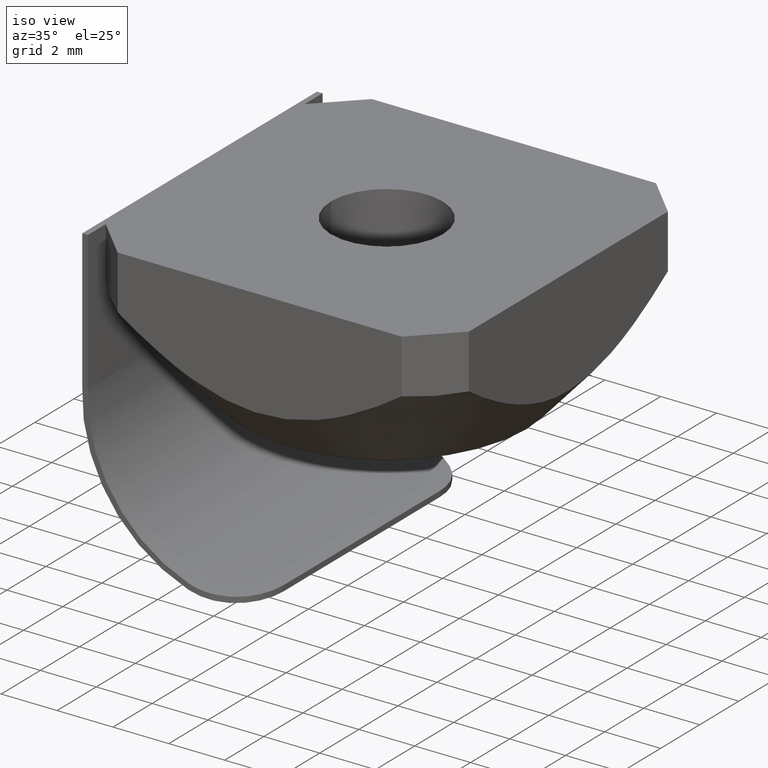
[diagram: clean part render]
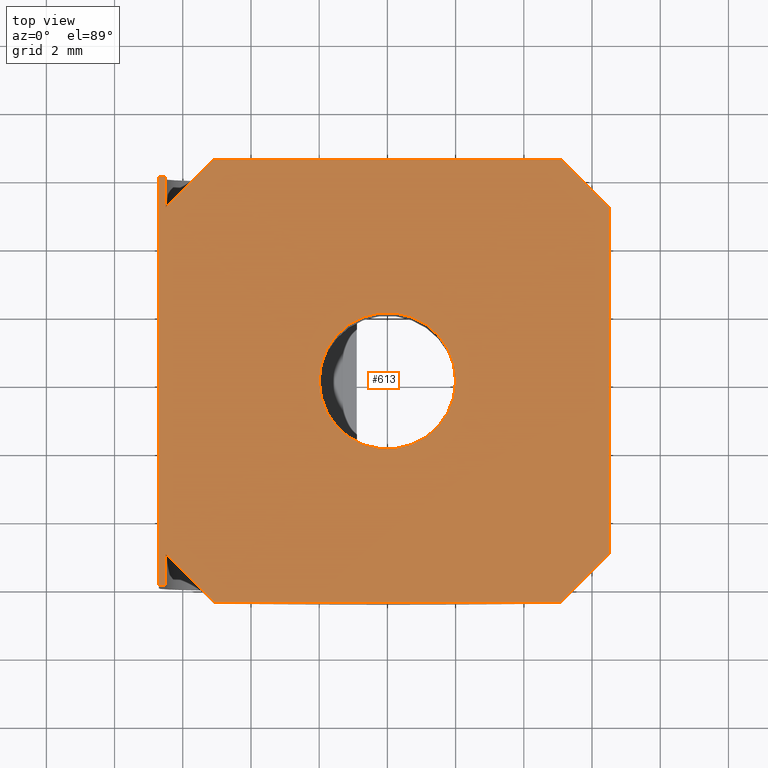
[diagram: tour spotlight — one face highlighted and labeled with its STEP entity id]
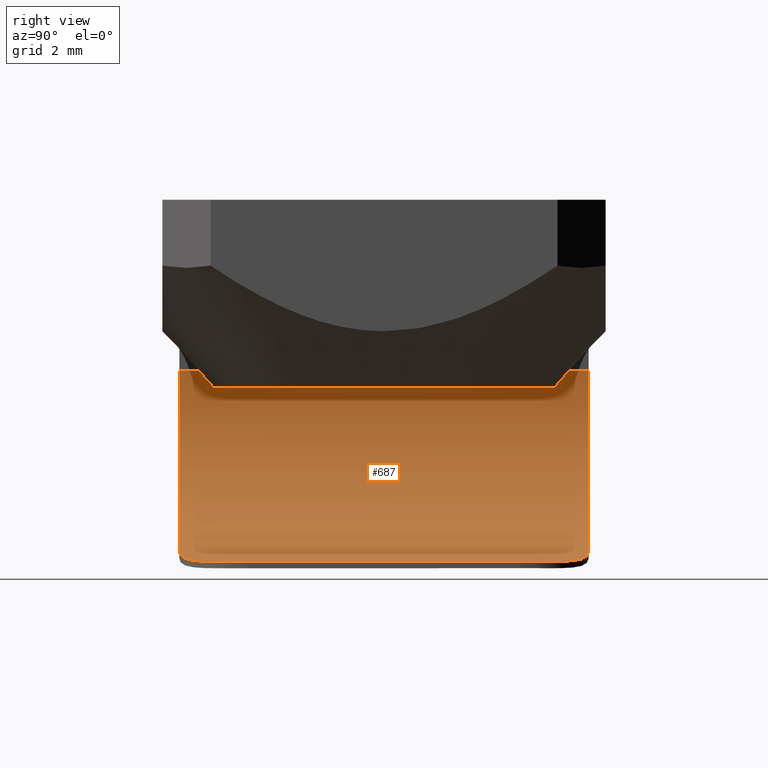
[diagram: tour spotlight — one face highlighted and labeled with its STEP entity id]
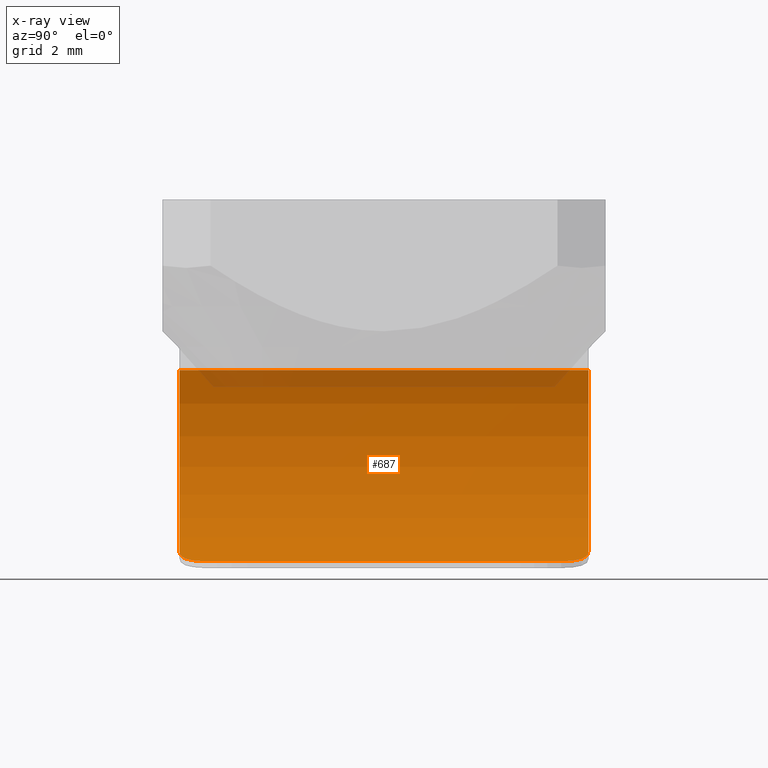
[diagram: x-ray of the same camera — body ghosted, this tour face saturated]
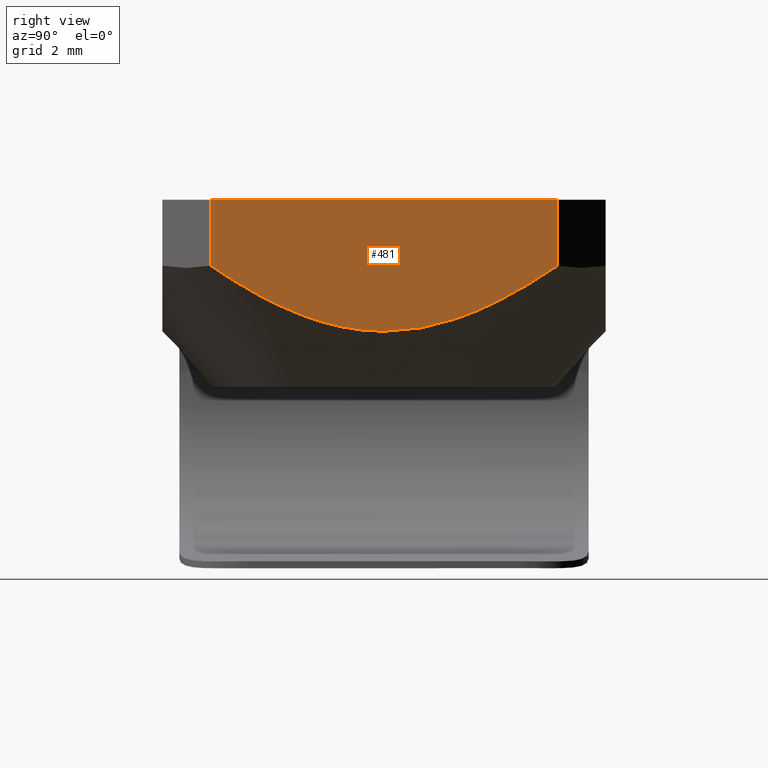
[diagram: tour spotlight — one face highlighted and labeled with its STEP entity id]
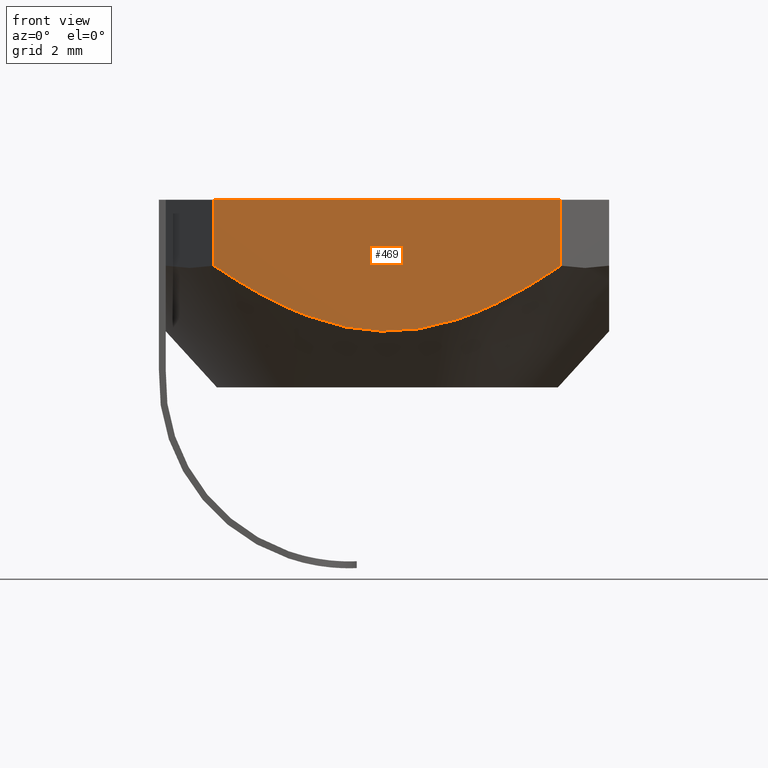
[diagram: tour spotlight — one face highlighted and labeled with its STEP entity id]
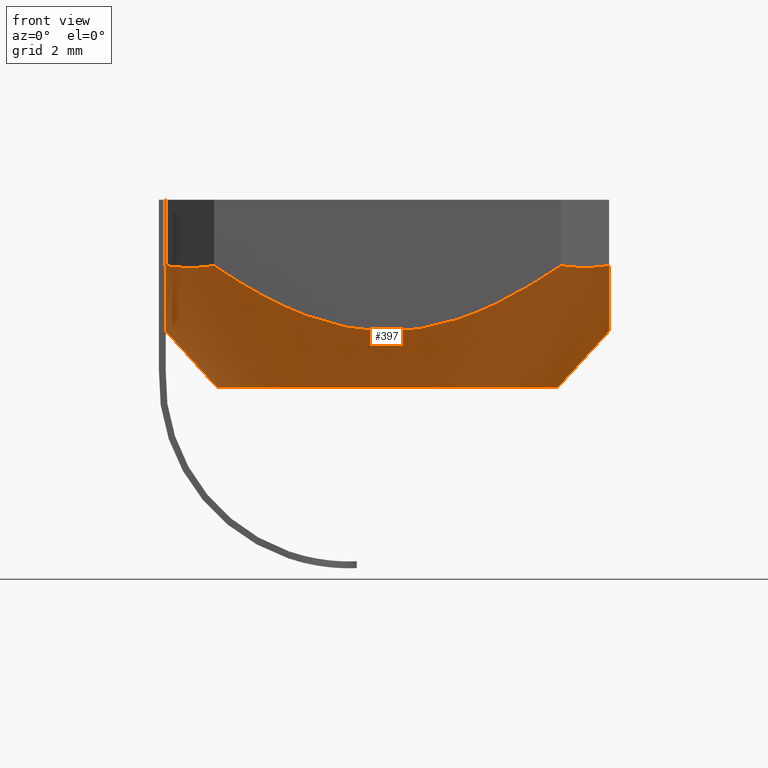
[diagram: tour spotlight — one face highlighted and labeled with its STEP entity id]
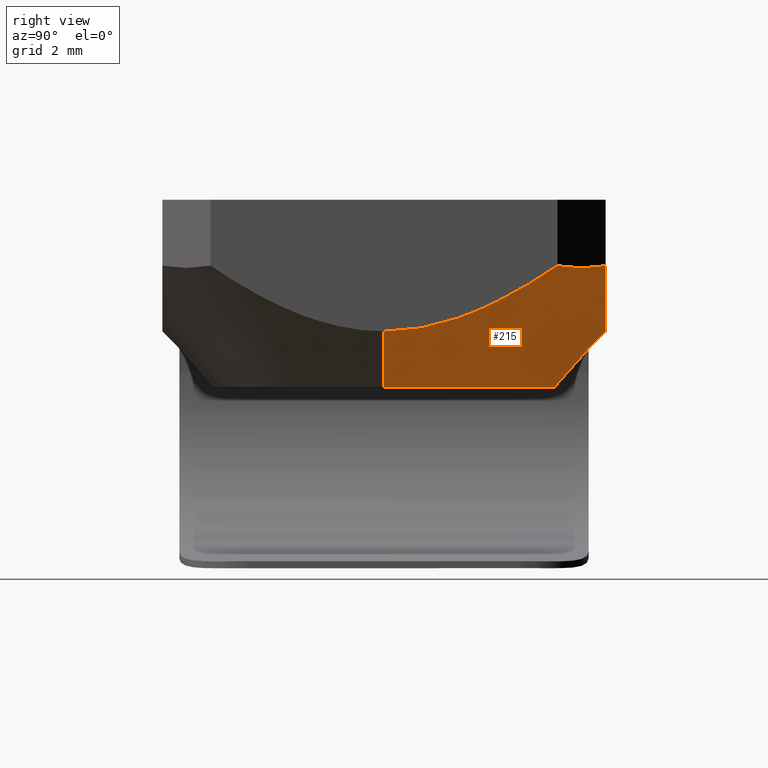
[diagram: tour spotlight — one face highlighted and labeled with its STEP entity id]
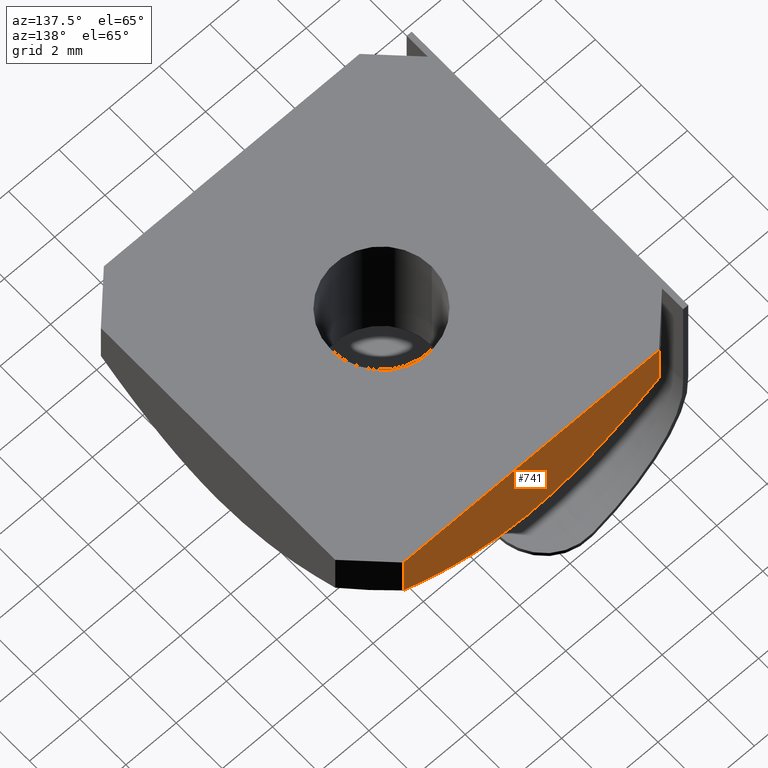
[diagram: tour spotlight — one face highlighted and labeled with its STEP entity id]
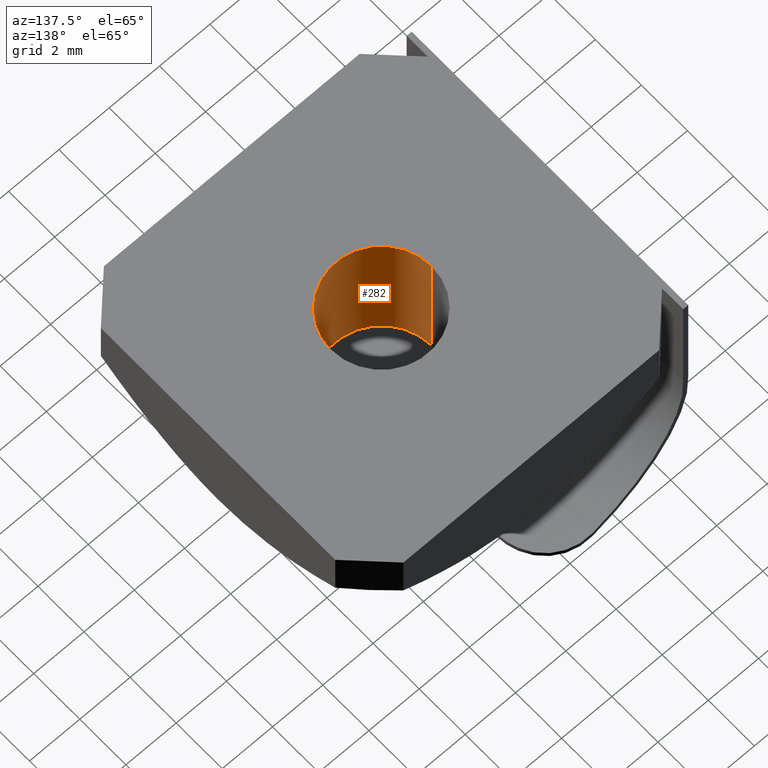
[diagram: tour spotlight — one face highlighted and labeled with its STEP entity id]
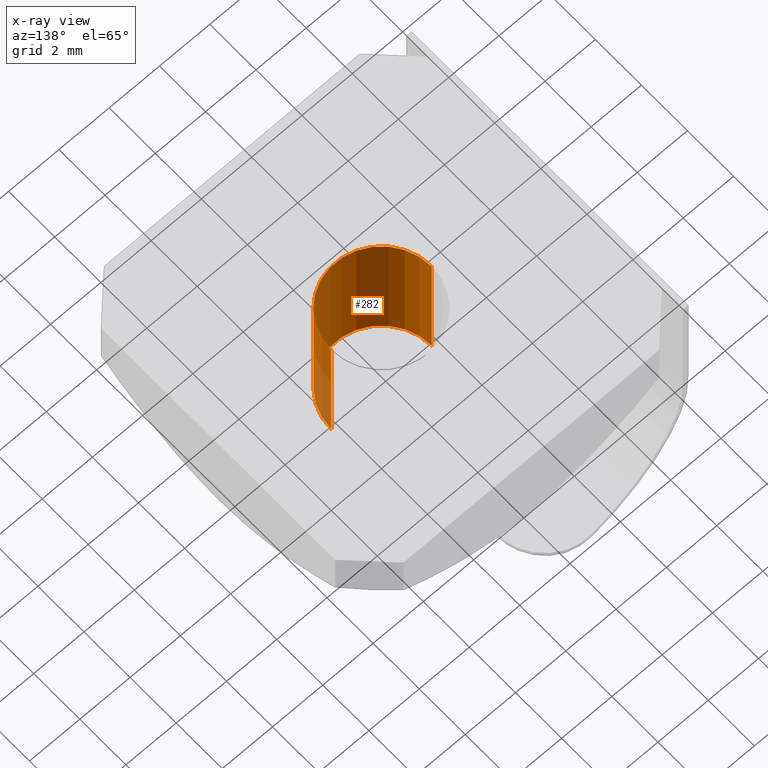
[diagram: x-ray of the same camera — body ghosted, this tour face saturated]
A machine part: a face-by-face anatomy tour. The part has 22 B-rep faces; the first image is the clean iso view, then the 8 largest visible faces are spotlighted one at a time (largest first), each with its STEP entity span.

Face 1 — top view, entity #613. In plain terms, the highlighted planar face has unit normal (0, 0, 1).
Definition (entity closure, byte-faithful):
#6 = AXIS2_PLACEMENT_3D ( 'NONE', #99, #86, #227 ) ;
#13 = ORIENTED_EDGE ( 'NONE', *, *, #447, .F. ) ;
#20 = VECTOR ( 'NONE', #470, 1000.000000000000114 ) ;
#23 = VERTEX_POINT ( 'NONE', #446 ) ;
#25 = EDGE_CURVE ( 'NONE', #303, #244, #812, .T. ) ;
#36 = CARTESIAN_POINT ( 'NONE',  ( -6.499999999999999112, 5.085786437626910406, 0.0000000000000000000 ) ) ;
#41 = FACE_BOUND ( 'NONE', #597, .T. ) ;
#52 = VECTOR ( 'NONE', #109, 1000.000000000000000 ) ;
#65 = DIRECTION ( 'NONE',  ( 1.000000000000000000, 0.0000000000000000000, -0.0000000000000000000 ) ) ;
#77 = DIRECTION ( 'NONE',  ( -0.0000000000000000000, -1.000000000000000000, -0.0000000000000000000 ) ) ;
#86 = DIRECTION ( 'NONE',  ( 0.0000000000000000000, 0.0000000000000000000, -1.000000000000000000 ) ) ;
#95 = ORIENTED_EDGE ( 'NONE', *, *, #852, .T. ) ;
#99 = CARTESIAN_POINT ( 'NONE',  ( 0.0000000000000000000, 0.0000000000000000000, 0.0000000000000000000 ) ) ;
#102 = VECTOR ( 'NONE', #248, 1000.000000000000000 ) ;
#109 = DIRECTION ( 'NONE',  ( -0.0000000000000000000, -1.000000000000000000, -0.0000000000000000000 ) ) ;
#114 = EDGE_LOOP ( 'NONE', ( #513, #193, #546, #744, #860, #567, #659, #532, #232, #13, #608, #95 ) ) ;
#149 = LINE ( 'NONE', #759, #657 ) ;
#163 = VECTOR ( 'NONE', #636, 1000.000000000000000 ) ;
#171 = AXIS2_PLACEMENT_3D ( 'NONE', #796, #450, #256 ) ;
#173 = EDGE_CURVE ( 'NONE', #375, #23, #331, .T. ) ;
#174 = ORIENTED_EDGE ( 'NONE', *, *, #618, .T. ) ;
#175 = CARTESIAN_POINT ( 'NONE',  ( -6.500000000000000888, 0.0000000000000000000, 0.0000000000000000000 ) ) ;
#182 = EDGE_CURVE ( 'NONE', #683, #827, #868, .T. ) ;
#188 = DIRECTION ( 'NONE',  ( 0.7071067811865473507, 0.7071067811865477948, 0.0000000000000000000 ) ) ;
#190 = EDGE_CURVE ( 'NONE', #827, #453, #429, .T. ) ;
#193 = ORIENTED_EDGE ( 'NONE', *, *, #416, .T. ) ;
#220 = LINE ( 'NONE', #175, #52 ) ;
#224 = CARTESIAN_POINT ( 'NONE',  ( -2.000000000000000000, 0.0000000000000000000, 0.0000000000000000000 ) ) ;
#227 = DIRECTION ( 'NONE',  ( -1.000000000000000000, 0.0000000000000000000, 0.0000000000000000000 ) ) ;
#231 = EDGE_CURVE ( 'NONE', #683, #534, #781, .T. ) ;
#232 = ORIENTED_EDGE ( 'NONE', *, *, #867, .T. ) ;
#244 = VERTEX_POINT ( 'NONE', #494 ) ;
#248 = DIRECTION ( 'NONE',  ( 0.7071067811865473507, -0.7071067811865477948, 0.0000000000000000000 ) ) ;
#253 = VECTOR ( 'NONE', #77, 1000.000000000000000 ) ;
#256 = DIRECTION ( 'NONE',  ( 1.000000000000000000, 0.0000000000000000000, -0.0000000000000000000 ) ) ;
#272 = EDGE_CURVE ( 'NONE', #344, #366, #858, .T. ) ;
#279 = DIRECTION ( 'NONE',  ( -1.000000000000000000, -0.0000000000000000000, 0.0000000000000000000 ) ) ;
#298 = LINE ( 'NONE', #485, #824 ) ;
#303 = VERTEX_POINT ( 'NONE', #357 ) ;
#318 = PLANE ( 'NONE',  #171 ) ;
#331 = LINE ( 'NONE', #833, #20 ) ;
#344 = VERTEX_POINT ( 'NONE', #224 ) ;
#347 = EDGE_CURVE ( 'NONE', #393, #453, #419, .T. ) ;
#349 = CARTESIAN_POINT ( 'NONE',  ( -6.700000000000000178, 6.591949000000000730E-16, 0.0000000000000000000 ) ) ;
#357 = CARTESIAN_POINT ( 'NONE',  ( -6.500000000000001776, -5.085786437626905965, 0.0000000000000000000 ) ) ;
#362 = CARTESIAN_POINT ( 'NONE',  ( 2.000000000000000000, 2.449293598294706414E-16, 0.0000000000000000000 ) ) ;
#366 = VERTEX_POINT ( 'NONE', #362 ) ;
#367 = CARTESIAN_POINT ( 'NONE',  ( 6.500000000000000888, 5.085786437626908629, 0.0000000000000000000 ) ) ;
#375 = VERTEX_POINT ( 'NONE', #367 ) ;
#380 = VERTEX_POINT ( 'NONE', #505 ) ;
#391 = LINE ( 'NONE', #863, #712 ) ;
#393 = VERTEX_POINT ( 'NONE', #506 ) ;
#406 = DIRECTION ( 'NONE',  ( 1.000000000000000000, 0.0000000000000000000, -0.0000000000000000000 ) ) ;
#412 = CIRCLE ( 'NONE', #888, 2.000000000000000000 ) ;
#416 = EDGE_CURVE ( 'NONE', #713, #375, #489, .T. ) ;
#419 = LINE ( 'NONE', #565, #670 ) ;
#426 = CARTESIAN_POINT ( 'NONE',  ( 6.500000000000000888, 6.591949000000000730E-16, 0.0000000000000000000 ) ) ;
#429 = LINE ( 'NONE', #482, #253 ) ;
#446 = CARTESIAN_POINT ( 'NONE',  ( 5.085786437626906853, 6.500000000000003553, 0.0000000000000000000 ) ) ;
#447 = EDGE_CURVE ( 'NONE', #303, #380, #220, .T. ) ;
#450 = DIRECTION ( 'NONE',  ( 0.0000000000000000000, 0.0000000000000000000, 1.000000000000000000 ) ) ;
#453 = VERTEX_POINT ( 'NONE', #36 ) ;
#455 = CARTESIAN_POINT ( 'NONE',  ( -6.700000000000000178, -6.000000000000000888, 0.0000000000000000000 ) ) ;
#470 = DIRECTION ( 'NONE',  ( -0.7071067811865474617, 0.7071067811865474617, 0.0000000000000000000 ) ) ;
#482 = CARTESIAN_POINT ( 'NONE',  ( -6.500000000000000888, 0.0000000000000000000, 0.0000000000000000000 ) ) ;
#485 = CARTESIAN_POINT ( 'NONE',  ( 8.326673000000000714E-16, 6.500000000000003553, 0.0000000000000000000 ) ) ;
#489 = LINE ( 'NONE', #426, #631 ) ;
#494 = CARTESIAN_POINT ( 'NONE',  ( -5.085786437626905077, -6.500000000000002665, 0.0000000000000000000 ) ) ;
#505 = CARTESIAN_POINT ( 'NONE',  ( -6.500000000000001776, -6.000000000000000888, 0.0000000000000000000 ) ) ;
#506 = CARTESIAN_POINT ( 'NONE',  ( -5.085786437626904188, 6.500000000000005329, 0.0000000000000000000 ) ) ;
#513 = ORIENTED_EDGE ( 'NONE', *, *, #542, .T. ) ;
#529 = CARTESIAN_POINT ( 'NONE',  ( -6.700000000000000178, 6.000000000000000888, 0.0000000000000000000 ) ) ;
#532 = ORIENTED_EDGE ( 'NONE', *, *, #231, .T. ) ;
#534 = VERTEX_POINT ( 'NONE', #455 ) ;
#538 = CARTESIAN_POINT ( 'NONE',  ( 5.085786437626906853, -6.500000000000002665, 0.0000000000000000000 ) ) ;
#540 = CARTESIAN_POINT ( 'NONE',  ( 6.500000000000000888, -5.085786437626907741, 0.0000000000000000000 ) ) ;
#542 = EDGE_CURVE ( 'NONE', #763, #713, #391, .T. ) ;
#546 = ORIENTED_EDGE ( 'NONE', *, *, #173, .T. ) ;
#553 = CARTESIAN_POINT ( 'NONE',  ( -5.221683483938816650, 6.000000000000000888, 0.0000000000000000000 ) ) ;
#565 = CARTESIAN_POINT ( 'NONE',  ( -5.085786437626904188, 6.500000000000005329, 0.0000000000000000000 ) ) ;
#567 = ORIENTED_EDGE ( 'NONE', *, *, #190, .F. ) ;
#583 = CARTESIAN_POINT ( 'NONE',  ( 0.0000000000000000000, 0.0000000000000000000, 0.0000000000000000000 ) ) ;
#597 = EDGE_LOOP ( 'NONE', ( #660, #174 ) ) ;
#608 = ORIENTED_EDGE ( 'NONE', *, *, #25, .T. ) ;
#613 = ADVANCED_FACE ( 'NONE', ( #41, #757 ), #318, .T. ) ;
#618 = EDGE_CURVE ( 'NONE', #366, #344, #412, .T. ) ;
#631 = VECTOR ( 'NONE', #648, 1000.000000000000000 ) ;
#636 = DIRECTION ( 'NONE',  ( 0.0000000000000000000, -1.000000000000000000, -0.0000000000000000000 ) ) ;
#648 = DIRECTION ( 'NONE',  ( -0.0000000000000000000, 1.000000000000000000, 0.0000000000000000000 ) ) ;
#654 = DIRECTION ( 'NONE',  ( 0.0000000000000000000, 0.0000000000000000000, -1.000000000000000000 ) ) ;
#657 = VECTOR ( 'NONE', #749, 1000.000000000000000 ) ;
#658 = CARTESIAN_POINT ( 'NONE',  ( -6.500000000000000888, -5.085786437626906853, 0.0000000000000000000 ) ) ;
#659 = ORIENTED_EDGE ( 'NONE', *, *, #182, .F. ) ;
#660 = ORIENTED_EDGE ( 'NONE', *, *, #272, .T. ) ;
#670 = VECTOR ( 'NONE', #775, 1000.000000000000114 ) ;
#683 = VERTEX_POINT ( 'NONE', #529 ) ;
#712 = VECTOR ( 'NONE', #188, 1000.000000000000000 ) ;
#713 = VERTEX_POINT ( 'NONE', #540 ) ;
#744 = ORIENTED_EDGE ( 'NONE', *, *, #822, .T. ) ;
#749 = DIRECTION ( 'NONE',  ( 1.000000000000000000, 0.0000000000000000000, -0.0000000000000000000 ) ) ;
#757 = FACE_OUTER_BOUND ( 'NONE', #114, .T. ) ;
#759 = CARTESIAN_POINT ( 'NONE',  ( 8.326673000000000714E-16, -6.500000000000002665, 0.0000000000000000000 ) ) ;
#763 = VERTEX_POINT ( 'NONE', #538 ) ;
#775 = DIRECTION ( 'NONE',  ( -0.7071067811865474617, -0.7071067811865474617, 0.0000000000000000000 ) ) ;
#781 = LINE ( 'NONE', #349, #163 ) ;
#794 = DIRECTION ( 'NONE',  ( -1.000000000000000000, 0.0000000000000000000, 0.0000000000000000000 ) ) ;
#796 = CARTESIAN_POINT ( 'NONE',  ( 8.326673000000000714E-16, 6.591949000000000730E-16, 0.0000000000000000000 ) ) ;
#798 = VECTOR ( 'NONE', #406, 1000.000000000000000 ) ;
#812 = LINE ( 'NONE', #658, #102 ) ;
#820 = CARTESIAN_POINT ( 'NONE',  ( -5.221683483938816650, -6.000000000000000888, 0.0000000000000000000 ) ) ;
#822 = EDGE_CURVE ( 'NONE', #23, #393, #298, .T. ) ;
#824 = VECTOR ( 'NONE', #279, 1000.000000000000000 ) ;
#826 = VECTOR ( 'NONE', #65, 1000.000000000000000 ) ;
#827 = VERTEX_POINT ( 'NONE', #829 ) ;
#829 = CARTESIAN_POINT ( 'NONE',  ( -6.500000000000001776, 6.000000000000000888, 0.0000000000000000000 ) ) ;
#833 = CARTESIAN_POINT ( 'NONE',  ( 6.500000000000002665, 5.085786437626907741, 0.0000000000000000000 ) ) ;
#845 = LINE ( 'NONE', #820, #798 ) ;
#852 = EDGE_CURVE ( 'NONE', #244, #763, #149, .T. ) ;
#858 = CIRCLE ( 'NONE', #6, 2.000000000000000000 ) ;
#860 = ORIENTED_EDGE ( 'NONE', *, *, #347, .T. ) ;
#863 = CARTESIAN_POINT ( 'NONE',  ( 5.085786437626905965, -6.500000000000003553, 0.0000000000000000000 ) ) ;
#867 = EDGE_CURVE ( 'NONE', #534, #380, #845, .T. ) ;
#868 = LINE ( 'NONE', #553, #826 ) ;
#888 = AXIS2_PLACEMENT_3D ( 'NONE', #583, #654, #794 ) ;

Face 2 — right view, entity #687. An x-ray twin of the same camera follows (body ghosted, this face saturated) — the face is partly hidden behind the body. In plain terms, the highlighted cylindrical surface (partial cylindrical patch) has radius 5.3743 mm, axis along (0, 1, 0).
Definition (entity closure, byte-faithful):
#7 = EDGE_CURVE ( 'NONE', #53, #431, #615, .T. ) ;
#33 = CARTESIAN_POINT ( 'NONE',  ( -2.774018952904929947, -6.000000000000001776, -10.34925711923462188 ) ) ;
#37 = CARTESIAN_POINT ( 'NONE',  ( -2.395696888733046759, -5.939631197184258582, -10.45556331374028147 ) ) ;
#43 = VERTEX_POINT ( 'NONE', #335 ) ;
#47 = CARTESIAN_POINT ( 'NONE',  ( -1.157931664290501539, 5.017141040148644926, -10.60584818137802543 ) ) ;
#50 = CARTESIAN_POINT ( 'NONE',  ( -1.004973661053198519, 4.652855014654567967, -10.60372327308630780 ) ) ;
#51 = EDGE_CURVE ( 'NONE', #280, #882, #478, .T. ) ;
#53 = VERTEX_POINT ( 'NONE', #530 ) ;
#58 = CARTESIAN_POINT ( 'NONE',  ( -2.648518024987377650, 5.988204754610038094, -10.38776501183287060 ) ) ;
#59 = DIRECTION ( 'NONE',  ( 0.0000000000000000000, 0.0000000000000000000, 1.000000000000000000 ) ) ;
#61 = CARTESIAN_POINT ( 'NONE',  ( -1.915782846449659571, 5.746021781213180191, -10.54844210040768182 ) ) ;
#69 = ORIENTED_EDGE ( 'NONE', *, *, #96, .F. ) ;
#88 = EDGE_CURVE ( 'NONE', #795, #431, #632, .T. ) ;
#96 = EDGE_CURVE ( 'NONE', #882, #53, #595, .T. ) ;
#100 = DIRECTION ( 'NONE',  ( -0.0000000000000000000, -1.000000000000000000, -0.0000000000000000000 ) ) ;
#104 = ORIENTED_EDGE ( 'NONE', *, *, #404, .F. ) ;
#117 = CARTESIAN_POINT ( 'NONE',  ( -1.106494188736913298, -4.894898602730262560, -10.60513923880284715 ) ) ;
#118 = DIRECTION ( 'NONE',  ( 0.0000000000000000000, 1.000000000000000000, 0.0000000000000000000 ) ) ;
#119 = CARTESIAN_POINT ( 'NONE',  ( -0.9650097329229258003, -4.522615477119103389, -10.60246055605721516 ) ) ;
#121 = CARTESIAN_POINT ( 'NONE',  ( -2.647896067399243769, -5.988198786915118532, -10.38797620515204656 ) ) ;
#129 = CARTESIAN_POINT ( 'NONE',  ( -1.310095481112453886, 5.241528610286935397, -10.60524065647586056 ) ) ;
#154 = CARTESIAN_POINT ( 'NONE',  ( -6.500000000000000888, -6.000000000000000888, -5.000000000000007105 ) ) ;
#157 = CARTESIAN_POINT ( 'NONE',  ( -0.8999999999990927479, 4.000000000000000888, -10.60000000000000142 ) ) ;
#161 = VECTOR ( 'NONE', #118, 1000.000000000000000 ) ;
#166 = ORIENTED_EDGE ( 'NONE', *, *, #637, .F. ) ;
#178 = CARTESIAN_POINT ( 'NONE',  ( -2.899999999999090861, -6.000000000000000888, -10.30533168883703432 ) ) ;
#240 = CIRCLE ( 'NONE', #785, 5.374336801206437642 ) ;
#243 = CARTESIAN_POINT ( 'NONE',  ( -0.8999999999990929700, -4.000000000000000888, -10.60000000000000142 ) ) ;
#247 = AXIS2_PLACEMENT_3D ( 'NONE', #678, #270, #59 ) ;
#252 = CARTESIAN_POINT ( 'NONE',  ( -2.031281744647319254, 5.806170918667604042, -10.53036751964402384 ) ) ;
#261 = CARTESIAN_POINT ( 'NONE',  ( -1.695744159845404386, 5.602199531040851888, -10.57630516161015422 ) ) ;
#267 = CARTESIAN_POINT ( 'NONE',  ( -1.591409444406668650, 5.518185817068715693, -10.58598417421093529 ) ) ;
#270 = DIRECTION ( 'NONE',  ( 0.0000000000000000000, 1.000000000000000000, 0.0000000000000000000 ) ) ;
#280 = VERTEX_POINT ( 'NONE', #294 ) ;
#294 = CARTESIAN_POINT ( 'NONE',  ( -2.899999999999091749, 6.000000000000000888, -10.30533168883703432 ) ) ;
#307 = CARTESIAN_POINT ( 'NONE',  ( -1.130613297613433987, 6.000000000000000888, -5.230613297613471602 ) ) ;
#312 = EDGE_LOOP ( 'NONE', ( #104, #166, #714, #413, #69, #433 ) ) ;
#314 = CARTESIAN_POINT ( 'NONE',  ( -1.402925667026931444, -5.332688051299565579, -10.59886806062529452 ) ) ;
#323 = CARTESIAN_POINT ( 'NONE',  ( -6.500000000000000888, 0.0000000000000000000, -4.999999999999999112 ) ) ;
#335 = CARTESIAN_POINT ( 'NONE',  ( -6.500000000000000888, 6.000000000000000888, -5.000000000000007105 ) ) ;
#378 = FACE_OUTER_BOUND ( 'NONE', #312, .T. ) ;
#404 = EDGE_CURVE ( 'NONE', #43, #280, #240, .T. ) ;
#413 = ORIENTED_EDGE ( 'NONE', *, *, #7, .F. ) ;
#431 = VERTEX_POINT ( 'NONE', #178 ) ;
#433 = ORIENTED_EDGE ( 'NONE', *, *, #51, .F. ) ;
#441 = VECTOR ( 'NONE', #611, 1000.000000000000000 ) ;
#442 = CARTESIAN_POINT ( 'NONE',  ( -0.9132177115950629309, -4.264594801702473958, -10.60061391845770551 ) ) ;
#449 = CARTESIAN_POINT ( 'NONE',  ( -2.270405351109912040, -5.902728491590884197, -10.48411861581596938 ) ) ;
#463 = CYLINDRICAL_SURFACE ( 'NONE', #247, 5.374336801206437642 ) ;
#478 = B_SPLINE_CURVE_WITH_KNOTS ( 'NONE', 3,
 ( #671, #528, #58, #675, #886, #252, #61, #261, #267, #129, #47, #50, #596, #605, #536, #811 ),
 .UNSPECIFIED., .F., .F.,
 ( 4, 2, 2, 2, 2, 2, 2, 4 ),
 ( 8.673617379884035472E-19, 0.0003946835368782056859, 0.0007893670737564105044, 0.001184050610634615214, 0.001578734147512820141, 0.002368101221269228694, 0.002762784758147433187, 0.003157468295025637247 ),
 .UNSPECIFIED. ) ;
#511 = CARTESIAN_POINT ( 'NONE',  ( -2.899999999999090861, -6.000000000000000888, -10.30533168883703432 ) ) ;
#518 = CARTESIAN_POINT ( 'NONE',  ( -1.910282521876402795, -5.757133988056938989, -10.55371426948262226 ) ) ;
#522 = CARTESIAN_POINT ( 'NONE',  ( -1.683971125497193855, -5.609481214074992117, -10.57968423231352872 ) ) ;
#528 = CARTESIAN_POINT ( 'NONE',  ( -2.774072311226993381, 5.999999999999999112, -10.34923851494995795 ) ) ;
#530 = CARTESIAN_POINT ( 'NONE',  ( -0.8999999999990929700, -4.000000000000000888, -10.60000000000000142 ) ) ;
#536 = CARTESIAN_POINT ( 'NONE',  ( -0.8999999999990925259, 4.133405337662475532, -10.60000000000000142 ) ) ;
#548 = DIRECTION ( 'NONE',  ( -0.0000000000000000000, -1.000000000000000000, -0.0000000000000000000 ) ) ;
#555 = LINE ( 'NONE', #323, #161 ) ;
#595 = LINE ( 'NONE', #877, #441 ) ;
#596 = CARTESIAN_POINT ( 'NONE',  ( -0.9654938442491616257, 4.524614171086824399, -10.60247663764588388 ) ) ;
#605 = CARTESIAN_POINT ( 'NONE',  ( -0.9132154111205603719, 4.264992627320561169, -10.60061500495137032 ) ) ;
#611 = DIRECTION ( 'NONE',  ( -0.0000000000000000000, -1.000000000000000000, -0.0000000000000000000 ) ) ;
#615 = B_SPLINE_CURVE_WITH_KNOTS ( 'NONE', 3,
 ( #243, #864, #442, #119, #866, #117, #655, #717, #314, #522, #518, #449, #37, #121, #33, #511 ),
 .UNSPECIFIED., .F., .F.,
 ( 4, 2, 2, 2, 2, 2, 2, 4 ),
 ( 0.0000000000000000000, 0.0003945890335982227683, 0.0007891780671964455365, 0.001183767100794668251, 0.001578356134392891073, 0.002367534201589336067, 0.002762123235187558673, 0.003156712268785781279 ),
 .UNSPECIFIED. ) ;
#632 = CIRCLE ( 'NONE', #679, 5.374336801206437642 ) ;
#637 = EDGE_CURVE ( 'NONE', #795, #43, #555, .T. ) ;
#655 = CARTESIAN_POINT ( 'NONE',  ( -1.169064915090254564, -5.010592027792083236, -10.60532134226049195 ) ) ;
#671 = CARTESIAN_POINT ( 'NONE',  ( -2.899999999999091749, 6.000000000000000888, -10.30533168883703432 ) ) ;
#675 = CARTESIAN_POINT ( 'NONE',  ( -2.398500311803508644, 5.940283327957410542, -10.45485593019749437 ) ) ;
#678 = CARTESIAN_POINT ( 'NONE',  ( -1.130613297613433987, 0.0000000000000000000, -5.230613297613471602 ) ) ;
#679 = AXIS2_PLACEMENT_3D ( 'NONE', #818, #548, #689 ) ;
#687 = ADVANCED_FACE ( 'NONE', ( #378 ), #463, .F. ) ;
#689 = DIRECTION ( 'NONE',  ( 0.0000000000000000000, 0.0000000000000000000, 1.000000000000000000 ) ) ;
#714 = ORIENTED_EDGE ( 'NONE', *, *, #88, .T. ) ;
#717 = CARTESIAN_POINT ( 'NONE',  ( -1.316938477185366718, -5.229369240623812587, -10.60222832659102288 ) ) ;
#785 = AXIS2_PLACEMENT_3D ( 'NONE', #307, #100, #844 ) ;
#795 = VERTEX_POINT ( 'NONE', #154 ) ;
#811 = CARTESIAN_POINT ( 'NONE',  ( -0.8999999999990927479, 4.000000000000000888, -10.60000000000000142 ) ) ;
#818 = CARTESIAN_POINT ( 'NONE',  ( -1.130613297613433987, -6.000000000000000888, -5.230613297613471602 ) ) ;
#844 = DIRECTION ( 'NONE',  ( 0.0000000000000000000, 0.0000000000000000000, 1.000000000000000000 ) ) ;
#864 = CARTESIAN_POINT ( 'NONE',  ( -0.8999999999990921928, -4.133424261134458710, -10.60000000000000142 ) ) ;
#866 = CARTESIAN_POINT ( 'NONE',  ( -1.004234548181599518, -4.650830205118816174, -10.60370730717840715 ) ) ;
#877 = CARTESIAN_POINT ( 'NONE',  ( -0.8999999999990937471, 0.0000000000000000000, -10.60000000000000142 ) ) ;
#882 = VERTEX_POINT ( 'NONE', #157 ) ;
#886 = CARTESIAN_POINT ( 'NONE',  ( -2.272586574857580199, 5.903490790252003961, -10.48365960423150334 ) ) ;

Face 3 — right view, entity #481. In plain terms, the highlighted planar face has unit normal (1, -0, 0).
Definition (entity closure, byte-faithful):
#14 = CARTESIAN_POINT ( 'NONE',  ( 6.500000000012471801, -5.085786437677110250, -1.933334202242371402 ) ) ;
#16 = CARTESIAN_POINT ( 'NONE',  ( 6.500000000000000888, -0.9207822176421274207, -3.800343512463968842 ) ) ;
#35 = EDGE_CURVE ( 'NONE', #304, #105, #590, .T. ) ;
#72 = B_SPLINE_CURVE_WITH_KNOTS ( 'NONE', 3,
 ( #90, #697, #164, #486, #769, #218, #692, #16, #843, #498 ),
 .UNSPECIFIED., .F., .F.,
 ( 4, 2, 2, 2, 4 ),
 ( 8.321661056377371081E-14, 0.001375070618102954174, 0.002750141236122692796, 0.004125211854142431418, 0.005500282472162170040 ),
 .UNSPECIFIED. ) ;
#90 = CARTESIAN_POINT ( 'NONE',  ( 6.500000000012471801, -5.085786437677110250, -1.933334202242371402 ) ) ;
#105 = VERTEX_POINT ( 'NONE', #609 ) ;
#111 = CARTESIAN_POINT ( 'NONE',  ( 6.500000000000001776, 3.516244482516675429, -2.888242014042283312 ) ) ;
#113 = CARTESIAN_POINT ( 'NONE',  ( 6.500000000012471801, 5.085786437614437716, -1.933334202284715309 ) ) ;
#122 = EDGE_CURVE ( 'NONE', #105, #375, #343, .T. ) ;
#164 = CARTESIAN_POINT ( 'NONE',  ( 6.500000000000000888, -4.314590728831698918, -2.436610215365368148 ) ) ;
#181 = DIRECTION ( 'NONE',  ( 1.000000000000000000, -0.0000000000000000000, 0.0000000000000000000 ) ) ;
#185 = ORIENTED_EDGE ( 'NONE', *, *, #755, .T. ) ;
#198 = CARTESIAN_POINT ( 'NONE',  ( 6.500000000000000888, 5.085786437626907741, 0.0000000000000000000 ) ) ;
#218 = CARTESIAN_POINT ( 'NONE',  ( 6.500000000000000000, -2.258188589613314257, -3.449924592231258913 ) ) ;
#222 = EDGE_CURVE ( 'NONE', #259, #304, #72, .T. ) ;
#237 = CARTESIAN_POINT ( 'NONE',  ( 6.500000000000000000, 4.703607954553438830, -2.191533235836048643 ) ) ;
#259 = VERTEX_POINT ( 'NONE', #14 ) ;
#304 = VERTEX_POINT ( 'NONE', #488 ) ;
#320 = CARTESIAN_POINT ( 'NONE',  ( 6.500000000000000888, 1.815600839890428864, -3.598271834400735170 ) ) ;
#343 = LINE ( 'NONE', #198, #846 ) ;
#354 = ORIENTED_EDGE ( 'NONE', *, *, #35, .T. ) ;
#367 = CARTESIAN_POINT ( 'NONE',  ( 6.500000000000000888, 5.085786437626908629, 0.0000000000000000000 ) ) ;
#375 = VERTEX_POINT ( 'NONE', #367 ) ;
#386 = CARTESIAN_POINT ( 'NONE',  ( 6.500000000000000888, 2.258115985482339383, -3.449951132496112738 ) ) ;
#390 = DIRECTION ( 'NONE',  ( 0.0000000000000000000, 0.0000000000000000000, -1.000000000000000000 ) ) ;
#411 = DIRECTION ( 'NONE',  ( -0.0000000000000000000, -0.0000000000000000000, 1.000000000000000000 ) ) ;
#416 = EDGE_CURVE ( 'NONE', #713, #375, #489, .T. ) ;
#426 = CARTESIAN_POINT ( 'NONE',  ( 6.500000000000000888, 6.591949000000000730E-16, 0.0000000000000000000 ) ) ;
#436 = CARTESIAN_POINT ( 'NONE',  ( 6.500000000000000888, 0.4651318099034550402, -3.855463141347036604 ) ) ;
#456 = ORIENTED_EDGE ( 'NONE', *, *, #222, .T. ) ;
#477 = ORIENTED_EDGE ( 'NONE', *, *, #416, .F. ) ;
#481 = ADVANCED_FACE ( 'NONE', ( #541 ), #594, .T. ) ;
#486 = CARTESIAN_POINT ( 'NONE',  ( 6.499999999999999112, -3.516297865762419761, -2.888213576328807708 ) ) ;
#488 = CARTESIAN_POINT ( 'NONE',  ( 6.500000000000000888, 2.268358371881253341E-15, -3.855463141347035716 ) ) ;
#489 = LINE ( 'NONE', #426, #631 ) ;
#495 = AXIS2_PLACEMENT_3D ( 'NONE', #799, #181, #874 ) ;
#498 = CARTESIAN_POINT ( 'NONE',  ( 6.500000000000000888, 2.268358371881253341E-15, -3.855463141347035716 ) ) ;
#510 = VECTOR ( 'NONE', #390, 1000.000000000000000 ) ;
#540 = CARTESIAN_POINT ( 'NONE',  ( 6.500000000000000888, -5.085786437626907741, 0.0000000000000000000 ) ) ;
#541 = FACE_OUTER_BOUND ( 'NONE', #801, .T. ) ;
#580 = CARTESIAN_POINT ( 'NONE',  ( 6.500000000000002665, 4.314560848977908591, -2.436628880351495496 ) ) ;
#589 = CARTESIAN_POINT ( 'NONE',  ( 6.500000000000000888, 0.9206392684270442439, -3.800366371404682475 ) ) ;
#590 = B_SPLINE_CURVE_WITH_KNOTS ( 'NONE', 3,
 ( #862, #436, #589, #320, #386, #871, #111, #580, #237, #113 ),
 .UNSPECIFIED., .F., .F.,
 ( 4, 2, 2, 2, 4 ),
 ( 0.005500282472162170040, 0.006875464021324488584, 0.008250645570486806260, 0.009625827119649123936, 0.01100100866881144161 ),
 .UNSPECIFIED. ) ;
#594 = PLANE ( 'NONE',  #495 ) ;
#609 = CARTESIAN_POINT ( 'NONE',  ( 6.500000000012471801, 5.085786437614437716, -1.933334202284715309 ) ) ;
#631 = VECTOR ( 'NONE', #648, 1000.000000000000000 ) ;
#648 = DIRECTION ( 'NONE',  ( -0.0000000000000000000, 1.000000000000000000, 0.0000000000000000000 ) ) ;
#692 = CARTESIAN_POINT ( 'NONE',  ( 6.500000000000000888, -1.815724347486215251, -3.598234520951646864 ) ) ;
#697 = CARTESIAN_POINT ( 'NONE',  ( 6.499999999966564523, -4.703623633186840181, -2.191522643361967226 ) ) ;
#713 = VERTEX_POINT ( 'NONE', #540 ) ;
#755 = EDGE_CURVE ( 'NONE', #713, #259, #865, .T. ) ;
#769 = CARTESIAN_POINT ( 'NONE',  ( 6.499999999999999112, -3.107104337365194535, -3.094856044108537763 ) ) ;
#799 = CARTESIAN_POINT ( 'NONE',  ( 6.500000000000000888, -5.085786437626907741, 0.0000000000000000000 ) ) ;
#801 = EDGE_LOOP ( 'NONE', ( #477, #185, #456, #354, #859 ) ) ;
#805 = CARTESIAN_POINT ( 'NONE',  ( 6.500000000000000888, -5.085786437626907741, 0.0000000000000000000 ) ) ;
#843 = CARTESIAN_POINT ( 'NONE',  ( 6.500000000000002665, -0.4650942893279644830, -3.855463141347037048 ) ) ;
#846 = VECTOR ( 'NONE', #411, 1000.000000000000000 ) ;
#859 = ORIENTED_EDGE ( 'NONE', *, *, #122, .T. ) ;
#862 = CARTESIAN_POINT ( 'NONE',  ( 6.500000000000000888, 2.268358371881253341E-15, -3.855463141347035716 ) ) ;
#865 = LINE ( 'NONE', #805, #510 ) ;
#871 = CARTESIAN_POINT ( 'NONE',  ( 6.500000000000002665, 3.107041589949054661, -3.094886115538637128 ) ) ;
#874 = DIRECTION ( 'NONE',  ( 0.0000000000000000000, 0.0000000000000000000, -1.000000000000000000 ) ) ;

Face 4 — front view, entity #469. In plain terms, the highlighted planar face has unit normal (0, -1, 0).
Definition (entity closure, byte-faithful):
#5 = CARTESIAN_POINT ( 'NONE',  ( -2.258066242822474035, -6.500000000000002665, -3.449969955218917583 ) ) ;
#8 = CARTESIAN_POINT ( 'NONE',  ( 4.314592221427061780, -6.500000000000002665, -2.436609088893720632 ) ) ;
#10 = CARTESIAN_POINT ( 'NONE',  ( -5.085786437677105809, -6.500000000012473578, -1.933334202242374511 ) ) ;
#71 = CARTESIAN_POINT ( 'NONE',  ( 3.107124692420668577, -6.500000000000003553, -3.094845548749633579 ) ) ;
#83 = VERTEX_POINT ( 'NONE', #389 ) ;
#145 = DIRECTION ( 'NONE',  ( 0.0000000000000000000, -0.0000000000000000000, -1.000000000000000000 ) ) ;
#149 = LINE ( 'NONE', #759, #657 ) ;
#156 = CARTESIAN_POINT ( 'NONE',  ( -4.314559355035862076, -6.500000000000002665, -2.436630007698925571 ) ) ;
#158 = EDGE_CURVE ( 'NONE', #301, #83, #736, .T. ) ;
#159 = CARTESIAN_POINT ( 'NONE',  ( 1.815743295979880711, -6.500000000000003553, -3.598228176136369694 ) ) ;
#169 = LINE ( 'NONE', #445, #191 ) ;
#180 = ORIENTED_EDGE ( 'NONE', *, *, #852, .F. ) ;
#191 = VECTOR ( 'NONE', #440, 1000.000000000000000 ) ;
#206 = CARTESIAN_POINT ( 'NONE',  ( 4.703623369059488191, -6.500000000000002665, -2.191522821825990341 ) ) ;
#208 = CARTESIAN_POINT ( 'NONE',  ( 3.516309706215214437, -6.500000000000002665, -2.888207160138610785 ) ) ;
#238 = PLANE ( 'NONE',  #507 ) ;
#244 = VERTEX_POINT ( 'NONE', #494 ) ;
#276 = CARTESIAN_POINT ( 'NONE',  ( -1.815581894366166571, -6.500000000000001776, -3.598278178908113745 ) ) ;
#301 = VERTEX_POINT ( 'NONE', #10 ) ;
#302 = CARTESIAN_POINT ( 'NONE',  ( -5.085786437626905965, -6.500000000000002665, 0.0000000000000000000 ) ) ;
#311 = DIRECTION ( 'NONE',  ( 0.0000000000000000000, -0.0000000000000000000, -1.000000000000000000 ) ) ;
#353 = VECTOR ( 'NONE', #145, 1000.000000000000000 ) ;
#355 = ORIENTED_EDGE ( 'NONE', *, *, #587, .F. ) ;
#382 = ORIENTED_EDGE ( 'NONE', *, *, #158, .T. ) ;
#389 = CARTESIAN_POINT ( 'NONE',  ( 5.085786437677106697, -6.500000000012474466, -1.933334202242371402 ) ) ;
#408 = CARTESIAN_POINT ( 'NONE',  ( 5.085786437677106697, -6.500000000012474466, -1.933334202242371402 ) ) ;
#428 = DIRECTION ( 'NONE',  ( 0.0000000000000000000, -1.000000000000000000, 0.0000000000000000000 ) ) ;
#440 = DIRECTION ( 'NONE',  ( 0.0000000000000000000, -0.0000000000000000000, -1.000000000000000000 ) ) ;
#445 = CARTESIAN_POINT ( 'NONE',  ( 5.085786437626905965, -6.500000000000003553, 0.0000000000000000000 ) ) ;
#467 = ORIENTED_EDGE ( 'NONE', *, *, #733, .T. ) ;
#469 = ADVANCED_FACE ( 'NONE', ( #693 ), #238, .T. ) ;
#472 = CARTESIAN_POINT ( 'NONE',  ( -0.9205997802961275456, -6.500000000000003553, -3.800373221879205232 ) ) ;
#494 = CARTESIAN_POINT ( 'NONE',  ( -5.085786437626905077, -6.500000000000002665, 0.0000000000000000000 ) ) ;
#507 = AXIS2_PLACEMENT_3D ( 'NONE', #302, #428, #311 ) ;
#538 = CARTESIAN_POINT ( 'NONE',  ( 5.085786437626906853, -6.500000000000002665, 0.0000000000000000000 ) ) ;
#587 = EDGE_CURVE ( 'NONE', #763, #83, #169, .T. ) ;
#600 = CARTESIAN_POINT ( 'NONE',  ( -5.085786437626905965, -6.500000000000002665, 0.0000000000000000000 ) ) ;
#625 = CARTESIAN_POINT ( 'NONE',  ( 2.258238322193993675, -6.500000000000004441, -3.449905772485376332 ) ) ;
#657 = VECTOR ( 'NONE', #749, 1000.000000000000000 ) ;
#673 = EDGE_LOOP ( 'NONE', ( #180, #467, #382, #355 ) ) ;
#677 = CARTESIAN_POINT ( 'NONE',  ( -5.085786437677105809, -6.500000000012473578, -1.933334202242374511 ) ) ;
#681 = CARTESIAN_POINT ( 'NONE',  ( -3.107021229645464011, -6.500000000000003553, -3.094896613372096539 ) ) ;
#693 = FACE_OUTER_BOUND ( 'NONE', #673, .T. ) ;
#733 = EDGE_CURVE ( 'NONE', #244, #301, #880, .T. ) ;
#736 = B_SPLINE_CURVE_WITH_KNOTS ( 'NONE', 3,
 ( #677, #831, #156, #892, #681, #5, #276, #472, #891, #761, #756, #159, #625, #71, #208, #8, #206, #408 ),
 .UNSPECIFIED., .F., .F.,
 ( 4, 2, 2, 2, 2, 2, 2, 2, 4 ),
 ( 8.321574170978936394E-14, 0.001375126083683639398, 0.002750252167284061508, 0.004125378250884484052, 0.005500504334484906596, 0.006875630418085329140, 0.008250756501685751684, 0.009625882585286174228, 0.01100100866888659851 ),
 .UNSPECIFIED. ) ;
#749 = DIRECTION ( 'NONE',  ( 1.000000000000000000, 0.0000000000000000000, -0.0000000000000000000 ) ) ;
#756 = CARTESIAN_POINT ( 'NONE',  ( 0.9208216822838624083, -6.500000000000002665, -3.800336665431245819 ) ) ;
#759 = CARTESIAN_POINT ( 'NONE',  ( 8.326673000000000714E-16, -6.500000000000002665, 0.0000000000000000000 ) ) ;
#761 = CARTESIAN_POINT ( 'NONE',  ( 0.4653350873336495885, -6.500000000000003553, -3.855445476124735649 ) ) ;
#763 = VERTEX_POINT ( 'NONE', #538 ) ;
#831 = CARTESIAN_POINT ( 'NONE',  ( -4.703608218064449176, -6.499999999966565412, -2.191533057788421779 ) ) ;
#852 = EDGE_CURVE ( 'NONE', #244, #763, #149, .T. ) ;
#880 = LINE ( 'NONE', #600, #353 ) ;
#891 = CARTESIAN_POINT ( 'NONE',  ( -0.4648848418447529274, -6.500000000000003553, -3.855480798021071465 ) ) ;
#892 = CARTESIAN_POINT ( 'NONE',  ( -3.516232638360159868, -6.500000000000004441, -2.888248432145468669 ) ) ;

Face 5 — front view, entity #397. In plain terms, the highlighted conical surface has half-angle 42.368 deg.
Definition (entity closure, byte-faithful):
#5 = CARTESIAN_POINT ( 'NONE',  ( -2.258066242822474035, -6.500000000000002665, -3.449969955218917583 ) ) ;
#8 = CARTESIAN_POINT ( 'NONE',  ( 4.314592221427061780, -6.500000000000002665, -2.436609088893720632 ) ) ;
#10 = CARTESIAN_POINT ( 'NONE',  ( -5.085786437677105809, -6.500000000012473578, -1.933334202242374511 ) ) ;
#14 = CARTESIAN_POINT ( 'NONE',  ( 6.500000000012471801, -5.085786437677110250, -1.933334202242371402 ) ) ;
#16 = CARTESIAN_POINT ( 'NONE',  ( 6.500000000000000888, -0.9207822176421274207, -3.800343512463968842 ) ) ;
#26 = CARTESIAN_POINT ( 'NONE',  ( -6.500000000000000888, 3.064398180133085755E-15, -3.855463141347039269 ) ) ;
#27 = CARTESIAN_POINT ( 'NONE',  ( -8.673617379884035472E-16, 1.734723475976807094E-15, -1.911934207335162839 ) ) ;
#31 = CARTESIAN_POINT ( 'NONE',  ( -6.500000000000002665, -4.314590746540053701, -2.436610204660846879 ) ) ;
#42 = CARTESIAN_POINT ( 'NONE',  ( -4.683470219463361509E-16, 1.335708759934739698E-15, -5.500000002871543892 ) ) ;
#44 = ORIENTED_EDGE ( 'NONE', *, *, #802, .F. ) ;
#67 = VERTEX_POINT ( 'NONE', #732 ) ;
#71 = CARTESIAN_POINT ( 'NONE',  ( 3.107124692420668577, -6.500000000000003553, -3.094845548749633579 ) ) ;
#72 = B_SPLINE_CURVE_WITH_KNOTS ( 'NONE', 3,
 ( #90, #697, #164, #486, #769, #218, #692, #16, #843, #498 ),
 .UNSPECIFIED., .F., .F.,
 ( 4, 2, 2, 2, 4 ),
 ( 8.321661056377371081E-14, 0.001375070618102954174, 0.002750141236122692796, 0.004125211854142431418, 0.005500282472162170040 ),
 .UNSPECIFIED. ) ;
#75 = CARTESIAN_POINT ( 'NONE',  ( -5.085786437677105809, -6.500000000012473578, -1.933334202242374511 ) ) ;
#83 = VERTEX_POINT ( 'NONE', #389 ) ;
#90 = CARTESIAN_POINT ( 'NONE',  ( 6.500000000012471801, -5.085786437677110250, -1.933334202242371402 ) ) ;
#107 = EDGE_CURVE ( 'NONE', #674, #301, #873, .T. ) ;
#108 = DIRECTION ( 'NONE',  ( -1.112060755793410790E-16, 1.112060755793410790E-16, 1.000000000000000000 ) ) ;
#127 = ORIENTED_EDGE ( 'NONE', *, *, #497, .T. ) ;
#148 = CARTESIAN_POINT ( 'NONE',  ( 6.028595479244057032, -5.557190958382852486, -2.021894486498649446 ) ) ;
#152 = ORIENTED_EDGE ( 'NONE', *, *, #222, .F. ) ;
#156 = CARTESIAN_POINT ( 'NONE',  ( -4.314559355035862076, -6.500000000000002665, -2.436630007698925571 ) ) ;
#158 = EDGE_CURVE ( 'NONE', #301, #83, #736, .T. ) ;
#159 = CARTESIAN_POINT ( 'NONE',  ( 1.815743295979880711, -6.500000000000003553, -3.598228176136369694 ) ) ;
#160 = CARTESIAN_POINT ( 'NONE',  ( -6.500000000000000888, 3.064398180133085755E-15, -3.855463141347039269 ) ) ;
#164 = CARTESIAN_POINT ( 'NONE',  ( 6.500000000000000888, -4.314590728831698918, -2.436610215365368148 ) ) ;
#172 = ORIENTED_EDGE ( 'NONE', *, *, #427, .T. ) ;
#206 = CARTESIAN_POINT ( 'NONE',  ( 4.703623369059488191, -6.500000000000002665, -2.191522821825990341 ) ) ;
#208 = CARTESIAN_POINT ( 'NONE',  ( 3.516309706215214437, -6.500000000000002665, -2.888207160138610785 ) ) ;
#216 = CARTESIAN_POINT ( 'NONE',  ( 5.085786437677106697, -6.500000000012474466, -1.933334202242371402 ) ) ;
#217 = CARTESIAN_POINT ( 'NONE',  ( -8.272713925181710337, 2.747838738850358616E-15, -1.911934207335163727 ) ) ;
#218 = CARTESIAN_POINT ( 'NONE',  ( 6.500000000000000000, -2.258188589613314257, -3.449924592231258913 ) ) ;
#222 = EDGE_CURVE ( 'NONE', #259, #304, #72, .T. ) ;
#223 = LINE ( 'NONE', #217, #373 ) ;
#228 = CARTESIAN_POINT ( 'NONE',  ( -6.500000000000000888, -3.107104350552365002, -3.094856037944705207 ) ) ;
#235 = CARTESIAN_POINT ( 'NONE',  ( -6.500000000000001776, -2.258188599350608339, -3.449924588806682735 ) ) ;
#241 = DIRECTION ( 'NONE',  ( -1.112060755793410790E-16, 1.112060755793410790E-16, 1.000000000000000000 ) ) ;
#250 = CARTESIAN_POINT ( 'NONE',  ( 5.000000003148240779, 1.335708759934739698E-15, -5.500000002871543003 ) ) ;
#259 = VERTEX_POINT ( 'NONE', #14 ) ;
#265 = CARTESIAN_POINT ( 'NONE',  ( -6.499999993186322378, -5.085786460416152899, -1.933334192774046389 ) ) ;
#266 = FACE_OUTER_BOUND ( 'NONE', #635, .T. ) ;
#274 = CARTESIAN_POINT ( 'NONE',  ( -5.557190953238038134, -6.028595484388869608, -2.021894485532125696 ) ) ;
#276 = CARTESIAN_POINT ( 'NONE',  ( -1.815581894366166571, -6.500000000000001776, -3.598278178908113745 ) ) ;
#277 = LINE ( 'NONE', #832, #451 ) ;
#301 = VERTEX_POINT ( 'NONE', #10 ) ;
#304 = VERTEX_POINT ( 'NONE', #488 ) ;
#317 = B_SPLINE_CURVE_WITH_KNOTS ( 'NONE', 3,
 ( #216, #765, #148, #834 ),
 .UNSPECIFIED., .F., .F.,
 ( 4, 4 ),
 ( 6.051050471646755322E-14, 0.002000000000007151873 ),
 .UNSPECIFIED. ) ;
#326 = EDGE_CURVE ( 'NONE', #67, #838, #223, .T. ) ;
#369 = DIRECTION ( 'NONE',  ( 1.000000000000000000, 0.0000000000000000000, 1.048460935350610842E-16 ) ) ;
#373 = VECTOR ( 'NONE', #559, 1000.000000000000114 ) ;
#379 = ORIENTED_EDGE ( 'NONE', *, *, #107, .F. ) ;
#389 = CARTESIAN_POINT ( 'NONE',  ( 5.085786437677106697, -6.500000000012474466, -1.933334202242371402 ) ) ;
#397 = ADVANCED_FACE ( 'NONE', ( #266 ), #720, .T. ) ;
#408 = CARTESIAN_POINT ( 'NONE',  ( 5.085786437677106697, -6.500000000012474466, -1.933334202242371402 ) ) ;
#427 = EDGE_CURVE ( 'NONE', #674, #838, #665, .T. ) ;
#432 = CARTESIAN_POINT ( 'NONE',  ( -6.500000000000000888, -1.815724355571117998, -3.598234518682033478 ) ) ;
#435 = CARTESIAN_POINT ( 'NONE',  ( -6.499999999966563635, -4.703623663799145760, -2.191522623682523818 ) ) ;
#448 = DIRECTION ( 'NONE',  ( 1.000000000000000000, 0.0000000000000000000, 1.734723474884541410E-16 ) ) ;
#451 = VECTOR ( 'NONE', #629, 1000.000000000000114 ) ;
#472 = CARTESIAN_POINT ( 'NONE',  ( -0.9205997802961275456, -6.500000000000003553, -3.800373221879205232 ) ) ;
#475 = CARTESIAN_POINT ( 'NONE',  ( -6.499999993186322378, -5.085786460416152899, -1.933334192774046389 ) ) ;
#486 = CARTESIAN_POINT ( 'NONE',  ( 6.499999999999999112, -3.516297865762419761, -2.888213576328807708 ) ) ;
#488 = CARTESIAN_POINT ( 'NONE',  ( 6.500000000000000888, 2.268358371881253341E-15, -3.855463141347035716 ) ) ;
#493 = VERTEX_POINT ( 'NONE', #250 ) ;
#497 = EDGE_CURVE ( 'NONE', #67, #493, #606, .T. ) ;
#498 = CARTESIAN_POINT ( 'NONE',  ( 6.500000000000000888, 2.268358371881253341E-15, -3.855463141347035716 ) ) ;
#503 = ORIENTED_EDGE ( 'NONE', *, *, #326, .F. ) ;
#559 = DIRECTION ( 'NONE',  ( -0.6738935147379921942, 1.646903699632265117E-16, 0.7388284853699641497 ) ) ;
#572 = CARTESIAN_POINT ( 'NONE',  ( -6.500000000000000888, -0.4650942909995222085, -3.855463141347039269 ) ) ;
#574 = CARTESIAN_POINT ( 'NONE',  ( -6.500000000000000000, -3.516297880510937723, -2.888213568672117315 ) ) ;
#581 = CARTESIAN_POINT ( 'NONE',  ( -6.500000000000000000, -0.9207822221066512824, -3.800343511899493265 ) ) ;
#606 = CIRCLE ( 'NONE', #821, 5.000000003148241667 ) ;
#619 = CARTESIAN_POINT ( 'NONE',  ( -6.028595478651393336, -5.557190974848928100, -2.021894490788222587 ) ) ;
#621 = ORIENTED_EDGE ( 'NONE', *, *, #883, .T. ) ;
#625 = CARTESIAN_POINT ( 'NONE',  ( 2.258238322193993675, -6.500000000000004441, -3.449905772485376332 ) ) ;
#629 = DIRECTION ( 'NONE',  ( 0.6738935147379919721, 8.216221638422233690E-17, 0.7388284853699643717 ) ) ;
#635 = EDGE_LOOP ( 'NONE', ( #503, #127, #621, #152, #44, #793, #379, #172 ) ) ;
#665 = B_SPLINE_CURVE_WITH_KNOTS ( 'NONE', 3,
 ( #857, #435, #31, #574, #228, #235, #432, #581, #572, #26 ),
 .UNSPECIFIED., .F., .F.,
 ( 4, 2, 2, 2, 4 ),
 ( 1.371897704505000388E-11, 0.001375070637910661081, 0.002750141262102344820, 0.004125211886294029642, 0.005500282510485713164 ),
 .UNSPECIFIED. ) ;
#674 = VERTEX_POINT ( 'NONE', #265 ) ;
#677 = CARTESIAN_POINT ( 'NONE',  ( -5.085786437677105809, -6.500000000012473578, -1.933334202242374511 ) ) ;
#681 = CARTESIAN_POINT ( 'NONE',  ( -3.107021229645464011, -6.500000000000003553, -3.094896613372096539 ) ) ;
#692 = CARTESIAN_POINT ( 'NONE',  ( 6.500000000000000888, -1.815724347486215251, -3.598234520951646864 ) ) ;
#697 = CARTESIAN_POINT ( 'NONE',  ( 6.499999999966564523, -4.703623633186840181, -2.191522643361967226 ) ) ;
#720 = CONICAL_SURFACE ( 'NONE', #754, 8.272713925181706784, 0.7394660560889116940 ) ;
#732 = CARTESIAN_POINT ( 'NONE',  ( -5.000000003148242556, 2.347935450422245371E-15, -5.500000002871544780 ) ) ;
#736 = B_SPLINE_CURVE_WITH_KNOTS ( 'NONE', 3,
 ( #677, #831, #156, #892, #681, #5, #276, #472, #891, #761, #756, #159, #625, #71, #208, #8, #206, #408 ),
 .UNSPECIFIED., .F., .F.,
 ( 4, 2, 2, 2, 2, 2, 2, 2, 4 ),
 ( 8.321574170978936394E-14, 0.001375126083683639398, 0.002750252167284061508, 0.004125378250884484052, 0.005500504334484906596, 0.006875630418085329140, 0.008250756501685751684, 0.009625882585286174228, 0.01100100866888659851 ),
 .UNSPECIFIED. ) ;
#754 = AXIS2_PLACEMENT_3D ( 'NONE', #27, #108, #369 ) ;
#756 = CARTESIAN_POINT ( 'NONE',  ( 0.9208216822838624083, -6.500000000000002665, -3.800336665431245819 ) ) ;
#761 = CARTESIAN_POINT ( 'NONE',  ( 0.4653350873336495885, -6.500000000000003553, -3.855445476124735649 ) ) ;
#765 = CARTESIAN_POINT ( 'NONE',  ( 5.557190958361344357, -6.028595479226081189, -2.021894486487701315 ) ) ;
#769 = CARTESIAN_POINT ( 'NONE',  ( 6.499999999999999112, -3.107104337365194535, -3.094856044108537763 ) ) ;
#793 = ORIENTED_EDGE ( 'NONE', *, *, #158, .F. ) ;
#802 = EDGE_CURVE ( 'NONE', #83, #259, #317, .T. ) ;
#821 = AXIS2_PLACEMENT_3D ( 'NONE', #42, #241, #448 ) ;
#831 = CARTESIAN_POINT ( 'NONE',  ( -4.703608218064449176, -6.499999999966565412, -2.191533057788421779 ) ) ;
#832 = CARTESIAN_POINT ( 'NONE',  ( 8.272713925181706784, 1.734723475976807094E-15, -1.911934207335161950 ) ) ;
#834 = CARTESIAN_POINT ( 'NONE',  ( 6.500000000012471801, -5.085786437677110250, -1.933334202242371402 ) ) ;
#838 = VERTEX_POINT ( 'NONE', #160 ) ;
#843 = CARTESIAN_POINT ( 'NONE',  ( 6.500000000000002665, -0.4650942893279644830, -3.855463141347037048 ) ) ;
#857 = CARTESIAN_POINT ( 'NONE',  ( -6.499999993186322378, -5.085786460416152899, -1.933334192774046389 ) ) ;
#873 = B_SPLINE_CURVE_WITH_KNOTS ( 'NONE', 3,
 ( #475, #619, #274, #75 ),
 .UNSPECIFIED., .F., .F.,
 ( 4, 4 ),
 ( 2.240106109367142299E-12, 0.001999999981280999733 ),
 .UNSPECIFIED. ) ;
#883 = EDGE_CURVE ( 'NONE', #493, #304, #277, .T. ) ;
#891 = CARTESIAN_POINT ( 'NONE',  ( -0.4648848418447529274, -6.500000000000003553, -3.855480798021071465 ) ) ;
#892 = CARTESIAN_POINT ( 'NONE',  ( -3.516232638360159868, -6.500000000000004441, -2.888248432145468669 ) ) ;

Face 6 — right view, entity #215. In plain terms, the highlighted conical surface has half-angle 42.368 deg.
Definition (entity closure, byte-faithful):
#22 = ORIENTED_EDGE ( 'NONE', *, *, #326, .T. ) ;
#35 = EDGE_CURVE ( 'NONE', #304, #105, #590, .T. ) ;
#55 = CARTESIAN_POINT ( 'NONE',  ( -0.9208216822838610760, 6.500000000000002665, -3.800336665431251593 ) ) ;
#63 = CARTESIAN_POINT ( 'NONE',  ( -6.500000000000001776, 3.107041528813947462, -3.094886144136435480 ) ) ;
#67 = VERTEX_POINT ( 'NONE', #732 ) ;
#74 = EDGE_CURVE ( 'NONE', #202, #762, #819, .T. ) ;
#82 = CARTESIAN_POINT ( 'NONE',  ( -8.673617379884035472E-16, 1.734723475976807094E-15, -1.911934207335162839 ) ) ;
#103 = CARTESIAN_POINT ( 'NONE',  ( -6.028595512367949993, 5.557190925258959524, -2.021894485311552803 ) ) ;
#105 = VERTEX_POINT ( 'NONE', #609 ) ;
#111 = CARTESIAN_POINT ( 'NONE',  ( 6.500000000000001776, 3.516244482516675429, -2.888242014042283312 ) ) ;
#113 = CARTESIAN_POINT ( 'NONE',  ( 6.500000000012471801, 5.085786437614437716, -1.933334202284715309 ) ) ;
#131 = CARTESIAN_POINT ( 'NONE',  ( -0.4653350873336496996, 6.500000000000003553, -3.855445476124739201 ) ) ;
#132 = CARTESIAN_POINT ( 'NONE',  ( -6.500000000000000888, 2.258115939526438520, -3.449951148689369695 ) ) ;
#134 = CARTESIAN_POINT ( 'NONE',  ( 1.815581894366168791, 6.500000000000003553, -3.598278178908117297 ) ) ;
#160 = CARTESIAN_POINT ( 'NONE',  ( -6.500000000000000888, 3.064398180133085755E-15, -3.855463141347039269 ) ) ;
#189 = CARTESIAN_POINT ( 'NONE',  ( -5.085786437677106697, 6.500000000012475354, -1.933334202242377842 ) ) ;
#192 = CARTESIAN_POINT ( 'NONE',  ( 5.085786437677108474, 6.500000000012474466, -1.933334202242375177 ) ) ;
#202 = VERTEX_POINT ( 'NONE', #339 ) ;
#204 = B_SPLINE_CURVE_WITH_KNOTS ( 'NONE', 3,
 ( #807, #887, #746, #395, #132, #63, #460, #462, #457, #610 ),
 .UNSPECIFIED., .F., .F.,
 ( 4, 2, 2, 2, 4 ),
 ( 0.005500282510485713164, 0.006875464031092158763, 0.008250645551698604363, 0.009625827072305050830, 0.01100100859291149556 ),
 .UNSPECIFIED. ) ;
#215 = ADVANCED_FACE ( 'NONE', ( #771 ), #512, .T. ) ;
#217 = CARTESIAN_POINT ( 'NONE',  ( -8.272713925181710337, 2.747838738850358616E-15, -1.911934207335163727 ) ) ;
#223 = LINE ( 'NONE', #217, #373 ) ;
#237 = CARTESIAN_POINT ( 'NONE',  ( 6.500000000000000000, 4.703607954553438830, -2.191533235836048643 ) ) ;
#250 = CARTESIAN_POINT ( 'NONE',  ( 5.000000003148240779, 1.335708759934739698E-15, -5.500000002871543003 ) ) ;
#258 = CARTESIAN_POINT ( 'NONE',  ( 2.258066242822476255, 6.500000000000003553, -3.449969955218920692 ) ) ;
#277 = LINE ( 'NONE', #832, #451 ) ;
#278 = ORIENTED_EDGE ( 'NONE', *, *, #459, .F. ) ;
#304 = VERTEX_POINT ( 'NONE', #488 ) ;
#315 = EDGE_CURVE ( 'NONE', #493, #67, #585, .T. ) ;
#320 = CARTESIAN_POINT ( 'NONE',  ( 6.500000000000000888, 1.815600839890428864, -3.598271834400735170 ) ) ;
#326 = EDGE_CURVE ( 'NONE', #67, #838, #223, .T. ) ;
#334 = ORIENTED_EDGE ( 'NONE', *, *, #723, .T. ) ;
#339 = CARTESIAN_POINT ( 'NONE',  ( 5.085786437677108474, 6.500000000012474466, -1.933334202242375177 ) ) ;
#373 = VECTOR ( 'NONE', #559, 1000.000000000000114 ) ;
#374 = VERTEX_POINT ( 'NONE', #777 ) ;
#386 = CARTESIAN_POINT ( 'NONE',  ( 6.500000000000000888, 2.258115985482339383, -3.449951132496112738 ) ) ;
#395 = CARTESIAN_POINT ( 'NONE',  ( -6.500000000000000000, 1.815600802417214776, -3.598271844878063952 ) ) ;
#396 = CARTESIAN_POINT ( 'NONE',  ( -4.314592221427059116, 6.500000000000005329, -2.436609088893727293 ) ) ;
#398 = CARTESIAN_POINT ( 'NONE',  ( -2.258238322193991898, 6.500000000000002665, -3.449905772485382105 ) ) ;
#400 = CARTESIAN_POINT ( 'NONE',  ( 0.4648848418447535380, 6.500000000000003553, -3.855480798021075461 ) ) ;
#407 = CARTESIAN_POINT ( 'NONE',  ( 6.028595479215633546, 5.557190958371792888, -2.021894486489666409 ) ) ;
#425 = DIRECTION ( 'NONE',  ( 1.000000000000000000, 0.0000000000000000000, 1.048460935350610842E-16 ) ) ;
#436 = CARTESIAN_POINT ( 'NONE',  ( 6.500000000000000888, 0.4651318099034550402, -3.855463141347036604 ) ) ;
#451 = VECTOR ( 'NONE', #629, 1000.000000000000114 ) ;
#452 = CARTESIAN_POINT ( 'NONE',  ( -1.815743295979880489, 6.500000000000003553, -3.598228176136374135 ) ) ;
#457 = CARTESIAN_POINT ( 'NONE',  ( -6.500000000000000888, 4.703607865908491448, -2.191533292728968352 ) ) ;
#459 = EDGE_CURVE ( 'NONE', #762, #374, #728, .T. ) ;
#460 = CARTESIAN_POINT ( 'NONE',  ( -6.500000000000000888, 3.516244414295480958, -2.888242049458875194 ) ) ;
#461 = CARTESIAN_POINT ( 'NONE',  ( 4.703608218064447399, 6.499999999966565412, -2.191533057788421335 ) ) ;
#462 = CARTESIAN_POINT ( 'NONE',  ( -6.500000000000000000, 4.314560767063976066, -2.436628929867394877 ) ) ;
#465 = ORIENTED_EDGE ( 'NONE', *, *, #74, .F. ) ;
#474 = CARTESIAN_POINT ( 'NONE',  ( 6.500000000012471801, 5.085786437614437716, -1.933334202284715309 ) ) ;
#488 = CARTESIAN_POINT ( 'NONE',  ( 6.500000000000000888, 2.268358371881253341E-15, -3.855463141347035716 ) ) ;
#493 = VERTEX_POINT ( 'NONE', #250 ) ;
#502 = CARTESIAN_POINT ( 'NONE',  ( -6.500000000000000000, 5.085786390128566481, -1.933334234376848704 ) ) ;
#509 = CARTESIAN_POINT ( 'NONE',  ( -5.085786437677106697, 6.500000000012475354, -1.933334202242377842 ) ) ;
#512 = CONICAL_SURFACE ( 'NONE', #738, 8.272713925181706784, 0.7394660560889116940 ) ;
#559 = DIRECTION ( 'NONE',  ( -0.6738935147379921942, 1.646903699632265117E-16, 0.7388284853699641497 ) ) ;
#562 = DIRECTION ( 'NONE',  ( 1.000000000000000000, 0.0000000000000000000, 1.734723474884541410E-16 ) ) ;
#580 = CARTESIAN_POINT ( 'NONE',  ( 6.500000000000002665, 4.314560848977908591, -2.436628880351495496 ) ) ;
#585 = CIRCLE ( 'NONE', #731, 5.000000003148241667 ) ;
#589 = CARTESIAN_POINT ( 'NONE',  ( 6.500000000000000888, 0.9206392684270442439, -3.800366371404682475 ) ) ;
#590 = B_SPLINE_CURVE_WITH_KNOTS ( 'NONE', 3,
 ( #862, #436, #589, #320, #386, #871, #111, #580, #237, #113 ),
 .UNSPECIFIED., .F., .F.,
 ( 4, 2, 2, 2, 4 ),
 ( 0.005500282472162170040, 0.006875464021324488584, 0.008250645570486806260, 0.009625827119649123936, 0.01100100866881144161 ),
 .UNSPECIFIED. ) ;
#609 = CARTESIAN_POINT ( 'NONE',  ( 6.500000000012471801, 5.085786437614437716, -1.933334202284715309 ) ) ;
#610 = CARTESIAN_POINT ( 'NONE',  ( -6.500000000000000000, 5.085786390128566481, -1.933334234376848704 ) ) ;
#629 = DIRECTION ( 'NONE',  ( 0.6738935147379919721, 8.216221638422233690E-17, 0.7388284853699643717 ) ) ;
#652 = ORIENTED_EDGE ( 'NONE', *, *, #835, .F. ) ;
#661 = ORIENTED_EDGE ( 'NONE', *, *, #883, .F. ) ;
#667 = CARTESIAN_POINT ( 'NONE',  ( -3.107124692420668133, 6.500000000000003553, -3.094845548749639796 ) ) ;
#684 = CARTESIAN_POINT ( 'NONE',  ( 5.557190958393293911, 6.028595479233616494, -2.021894486500614985 ) ) ;
#704 = ORIENTED_EDGE ( 'NONE', *, *, #315, .T. ) ;
#716 = CARTESIAN_POINT ( 'NONE',  ( -5.557190966524053977, 6.028595471063369793, -2.021894488021193315 ) ) ;
#723 = EDGE_CURVE ( 'NONE', #838, #374, #204, .T. ) ;
#725 = CARTESIAN_POINT ( 'NONE',  ( -3.516309706215212660, 6.500000000000002665, -2.888207160138617002 ) ) ;
#728 = B_SPLINE_CURVE_WITH_KNOTS ( 'NONE', 3,
 ( #509, #716, #103, #502 ),
 .UNSPECIFIED., .F., .F.,
 ( 4, 4 ),
 ( 6.051111803072601847E-14, 0.002000000033620231207 ),
 .UNSPECIFIED. ) ;
#731 = AXIS2_PLACEMENT_3D ( 'NONE', #841, #837, #562 ) ;
#732 = CARTESIAN_POINT ( 'NONE',  ( -5.000000003148242556, 2.347935450422245371E-15, -5.500000002871544780 ) ) ;
#735 = CARTESIAN_POINT ( 'NONE',  ( 0.9205997802961283227, 6.500000000000003553, -3.800373221879208341 ) ) ;
#738 = AXIS2_PLACEMENT_3D ( 'NONE', #82, #750, #425 ) ;
#739 = CARTESIAN_POINT ( 'NONE',  ( 4.314559355035864741, 6.500000000000004441, -2.436630007698926459 ) ) ;
#746 = CARTESIAN_POINT ( 'NONE',  ( -6.500000000000001776, 0.9206392489088874864, -3.800366373796787656 ) ) ;
#750 = DIRECTION ( 'NONE',  ( -1.112060755793410790E-16, 1.112060755793410790E-16, 1.000000000000000000 ) ) ;
#753 = CARTESIAN_POINT ( 'NONE',  ( 5.085786437677108474, 6.500000000012474466, -1.933334202242375177 ) ) ;
#762 = VERTEX_POINT ( 'NONE', #809 ) ;
#771 = FACE_OUTER_BOUND ( 'NONE', #839, .T. ) ;
#777 = CARTESIAN_POINT ( 'NONE',  ( -6.500000000000000000, 5.085786390128566481, -1.933334234376848704 ) ) ;
#807 = CARTESIAN_POINT ( 'NONE',  ( -6.500000000000000888, 3.064398180133085755E-15, -3.855463141347039269 ) ) ;
#808 = CARTESIAN_POINT ( 'NONE',  ( 3.516232638360159868, 6.500000000000003553, -2.888248432145468669 ) ) ;
#809 = CARTESIAN_POINT ( 'NONE',  ( -5.085786437677106697, 6.500000000012475354, -1.933334202242377842 ) ) ;
#815 = CARTESIAN_POINT ( 'NONE',  ( 3.107021229645465343, 6.500000000000003553, -3.094896613372098315 ) ) ;
#819 = B_SPLINE_CURVE_WITH_KNOTS ( 'NONE', 3,
 ( #192, #461, #739, #808, #815, #258, #134, #735, #400, #131, #55, #452, #398, #667, #725, #396, #881, #189 ),
 .UNSPECIFIED., .F., .F.,
 ( 4, 2, 2, 2, 2, 2, 2, 2, 4 ),
 ( 8.321467144627602380E-14, 0.001375126083683638313, 0.002750252167284061942, 0.004125378250884485787, 0.005500504334484909198, 0.006875630418085332610, 0.008250756501685756888, 0.009625882585286179433, 0.01100100866888660371 ),
 .UNSPECIFIED. ) ;
#832 = CARTESIAN_POINT ( 'NONE',  ( 8.272713925181706784, 1.734723475976807094E-15, -1.911934207335161950 ) ) ;
#835 = EDGE_CURVE ( 'NONE', #105, #202, #878, .T. ) ;
#837 = DIRECTION ( 'NONE',  ( -1.112060755793410790E-16, 1.112060755793410790E-16, 1.000000000000000000 ) ) ;
#838 = VERTEX_POINT ( 'NONE', #160 ) ;
#839 = EDGE_LOOP ( 'NONE', ( #704, #22, #334, #278, #465, #652, #884, #661 ) ) ;
#841 = CARTESIAN_POINT ( 'NONE',  ( -4.683470219463361509E-16, 1.335708759934739698E-15, -5.500000002871543892 ) ) ;
#862 = CARTESIAN_POINT ( 'NONE',  ( 6.500000000000000888, 2.268358371881253341E-15, -3.855463141347035716 ) ) ;
#871 = CARTESIAN_POINT ( 'NONE',  ( 6.500000000000002665, 3.107041589949054661, -3.094886115538637128 ) ) ;
#878 = B_SPLINE_CURVE_WITH_KNOTS ( 'NONE', 3,
 ( #474, #407, #684, #753 ),
 .UNSPECIFIED., .F., .F.,
 ( 4, 4 ),
 ( 1.619525838437646925E-14, 0.002000000000007150572 ),
 .UNSPECIFIED. ) ;
#881 = CARTESIAN_POINT ( 'NONE',  ( -4.703623369059489079, 6.500000000000002665, -2.191522821825996559 ) ) ;
#883 = EDGE_CURVE ( 'NONE', #493, #304, #277, .T. ) ;
#884 = ORIENTED_EDGE ( 'NONE', *, *, #35, .F. ) ;
#887 = CARTESIAN_POINT ( 'NONE',  ( -6.500000000000000000, 0.4651317998288859723, -3.855463141347039269 ) ) ;

Face 7 — auxiliary view, entity #741. In plain terms, the highlighted planar face has unit normal (0, 1, 0).
Definition (entity closure, byte-faithful):
#23 = VERTEX_POINT ( 'NONE', #446 ) ;
#55 = CARTESIAN_POINT ( 'NONE',  ( -0.9208216822838610760, 6.500000000000002665, -3.800336665431251593 ) ) ;
#74 = EDGE_CURVE ( 'NONE', #202, #762, #819, .T. ) ;
#115 = ORIENTED_EDGE ( 'NONE', *, *, #74, .T. ) ;
#131 = CARTESIAN_POINT ( 'NONE',  ( -0.4653350873336496996, 6.500000000000003553, -3.855445476124739201 ) ) ;
#134 = CARTESIAN_POINT ( 'NONE',  ( 1.815581894366168791, 6.500000000000003553, -3.598278178908117297 ) ) ;
#143 = EDGE_CURVE ( 'NONE', #23, #202, #800, .T. ) ;
#187 = ORIENTED_EDGE ( 'NONE', *, *, #143, .T. ) ;
#189 = CARTESIAN_POINT ( 'NONE',  ( -5.085786437677106697, 6.500000000012475354, -1.933334202242377842 ) ) ;
#192 = CARTESIAN_POINT ( 'NONE',  ( 5.085786437677108474, 6.500000000012474466, -1.933334202242375177 ) ) ;
#202 = VERTEX_POINT ( 'NONE', #339 ) ;
#258 = CARTESIAN_POINT ( 'NONE',  ( 2.258066242822476255, 6.500000000000003553, -3.449969955218920692 ) ) ;
#260 = PLANE ( 'NONE',  #875 ) ;
#262 = DIRECTION ( 'NONE',  ( 0.0000000000000000000, -0.0000000000000000000, 1.000000000000000000 ) ) ;
#273 = CARTESIAN_POINT ( 'NONE',  ( 5.085786437626906853, 6.500000000000003553, 0.0000000000000000000 ) ) ;
#279 = DIRECTION ( 'NONE',  ( -1.000000000000000000, -0.0000000000000000000, 0.0000000000000000000 ) ) ;
#298 = LINE ( 'NONE', #485, #824 ) ;
#321 = ORIENTED_EDGE ( 'NONE', *, *, #822, .F. ) ;
#327 = CARTESIAN_POINT ( 'NONE',  ( 5.085786437626906853, 6.500000000000003553, 0.0000000000000000000 ) ) ;
#339 = CARTESIAN_POINT ( 'NONE',  ( 5.085786437677108474, 6.500000000012474466, -1.933334202242375177 ) ) ;
#341 = LINE ( 'NONE', #742, #726 ) ;
#392 = EDGE_LOOP ( 'NONE', ( #321, #187, #115, #624 ) ) ;
#393 = VERTEX_POINT ( 'NONE', #506 ) ;
#396 = CARTESIAN_POINT ( 'NONE',  ( -4.314592221427059116, 6.500000000000005329, -2.436609088893727293 ) ) ;
#398 = CARTESIAN_POINT ( 'NONE',  ( -2.258238322193991898, 6.500000000000002665, -3.449905772485382105 ) ) ;
#400 = CARTESIAN_POINT ( 'NONE',  ( 0.4648848418447535380, 6.500000000000003553, -3.855480798021075461 ) ) ;
#446 = CARTESIAN_POINT ( 'NONE',  ( 5.085786437626906853, 6.500000000000003553, 0.0000000000000000000 ) ) ;
#452 = CARTESIAN_POINT ( 'NONE',  ( -1.815743295979880489, 6.500000000000003553, -3.598228176136374135 ) ) ;
#461 = CARTESIAN_POINT ( 'NONE',  ( 4.703608218064447399, 6.499999999966565412, -2.191533057788421335 ) ) ;
#485 = CARTESIAN_POINT ( 'NONE',  ( 8.326673000000000714E-16, 6.500000000000003553, 0.0000000000000000000 ) ) ;
#506 = CARTESIAN_POINT ( 'NONE',  ( -5.085786437626904188, 6.500000000000005329, 0.0000000000000000000 ) ) ;
#543 = DIRECTION ( 'NONE',  ( -0.0000000000000000000, 0.0000000000000000000, -1.000000000000000000 ) ) ;
#624 = ORIENTED_EDGE ( 'NONE', *, *, #691, .F. ) ;
#667 = CARTESIAN_POINT ( 'NONE',  ( -3.107124692420668133, 6.500000000000003553, -3.094845548749639796 ) ) ;
#682 = FACE_OUTER_BOUND ( 'NONE', #392, .T. ) ;
#691 = EDGE_CURVE ( 'NONE', #393, #762, #341, .T. ) ;
#721 = VECTOR ( 'NONE', #543, 1000.000000000000000 ) ;
#725 = CARTESIAN_POINT ( 'NONE',  ( -3.516309706215212660, 6.500000000000002665, -2.888207160138617002 ) ) ;
#726 = VECTOR ( 'NONE', #879, 1000.000000000000000 ) ;
#735 = CARTESIAN_POINT ( 'NONE',  ( 0.9205997802961283227, 6.500000000000003553, -3.800373221879208341 ) ) ;
#737 = DIRECTION ( 'NONE',  ( 0.0000000000000000000, 1.000000000000000000, 0.0000000000000000000 ) ) ;
#739 = CARTESIAN_POINT ( 'NONE',  ( 4.314559355035864741, 6.500000000000004441, -2.436630007698926459 ) ) ;
#741 = ADVANCED_FACE ( 'NONE', ( #682 ), #260, .T. ) ;
#742 = CARTESIAN_POINT ( 'NONE',  ( -5.085786437626904188, 6.500000000000005329, 0.0000000000000000000 ) ) ;
#762 = VERTEX_POINT ( 'NONE', #809 ) ;
#800 = LINE ( 'NONE', #273, #721 ) ;
#808 = CARTESIAN_POINT ( 'NONE',  ( 3.516232638360159868, 6.500000000000003553, -2.888248432145468669 ) ) ;
#809 = CARTESIAN_POINT ( 'NONE',  ( -5.085786437677106697, 6.500000000012475354, -1.933334202242377842 ) ) ;
#815 = CARTESIAN_POINT ( 'NONE',  ( 3.107021229645465343, 6.500000000000003553, -3.094896613372098315 ) ) ;
#819 = B_SPLINE_CURVE_WITH_KNOTS ( 'NONE', 3,
 ( #192, #461, #739, #808, #815, #258, #134, #735, #400, #131, #55, #452, #398, #667, #725, #396, #881, #189 ),
 .UNSPECIFIED., .F., .F.,
 ( 4, 2, 2, 2, 2, 2, 2, 2, 4 ),
 ( 8.321467144627602380E-14, 0.001375126083683638313, 0.002750252167284061942, 0.004125378250884485787, 0.005500504334484909198, 0.006875630418085332610, 0.008250756501685756888, 0.009625882585286179433, 0.01100100866888660371 ),
 .UNSPECIFIED. ) ;
#822 = EDGE_CURVE ( 'NONE', #23, #393, #298, .T. ) ;
#824 = VECTOR ( 'NONE', #279, 1000.000000000000000 ) ;
#875 = AXIS2_PLACEMENT_3D ( 'NONE', #327, #737, #262 ) ;
#879 = DIRECTION ( 'NONE',  ( -0.0000000000000000000, -0.0000000000000000000, -1.000000000000000000 ) ) ;
#881 = CARTESIAN_POINT ( 'NONE',  ( -4.703623369059489079, 6.500000000000002665, -2.191522821825996559 ) ) ;

Face 8 — auxiliary view, entity #282. An x-ray twin of the same camera follows (body ghosted, this face saturated) — the face is partly hidden behind the body. In plain terms, the highlighted cylindrical surface (partial cylindrical patch) has radius 2 mm, axis along (0, 0, -1).
Definition (entity closure, byte-faithful):
#11 = LINE ( 'NONE', #197, #290 ) ;
#28 = CIRCLE ( 'NONE', #840, 2.000000000000000000 ) ;
#32 = ORIENTED_EDGE ( 'NONE', *, *, #618, .F. ) ;
#45 = CARTESIAN_POINT ( 'NONE',  ( 2.000000000000000000, 2.449293598294706414E-16, -5.500000000000000000 ) ) ;
#195 = DIRECTION ( 'NONE',  ( 0.0000000000000000000, 0.0000000000000000000, -1.000000000000000000 ) ) ;
#197 = CARTESIAN_POINT ( 'NONE',  ( -2.000000000000000000, 0.0000000000000000000, 0.0000000000000000000 ) ) ;
#224 = CARTESIAN_POINT ( 'NONE',  ( -2.000000000000000000, 0.0000000000000000000, 0.0000000000000000000 ) ) ;
#282 = ADVANCED_FACE ( 'NONE', ( #490 ), #309, .F. ) ;
#289 = CARTESIAN_POINT ( 'NONE',  ( 0.0000000000000000000, 0.0000000000000000000, 0.0000000000000000000 ) ) ;
#290 = VECTOR ( 'NONE', #195, 1000.000000000000000 ) ;
#297 = AXIS2_PLACEMENT_3D ( 'NONE', #289, #633, #767 ) ;
#309 = CYLINDRICAL_SURFACE ( 'NONE', #297, 2.000000000000000000 ) ;
#344 = VERTEX_POINT ( 'NONE', #224 ) ;
#362 = CARTESIAN_POINT ( 'NONE',  ( 2.000000000000000000, 2.449293598294706414E-16, 0.0000000000000000000 ) ) ;
#363 = VECTOR ( 'NONE', #434, 1000.000000000000000 ) ;
#366 = VERTEX_POINT ( 'NONE', #362 ) ;
#376 = CARTESIAN_POINT ( 'NONE',  ( 2.000000000000000000, 2.449293598294706414E-16, 0.0000000000000000000 ) ) ;
#377 = CARTESIAN_POINT ( 'NONE',  ( 0.0000000000000000000, 0.0000000000000000000, -5.500000000000000000 ) ) ;
#387 = EDGE_CURVE ( 'NONE', #366, #560, #575, .T. ) ;
#394 = VERTEX_POINT ( 'NONE', #710 ) ;
#412 = CIRCLE ( 'NONE', #888, 2.000000000000000000 ) ;
#434 = DIRECTION ( 'NONE',  ( 0.0000000000000000000, 0.0000000000000000000, -1.000000000000000000 ) ) ;
#490 = FACE_OUTER_BOUND ( 'NONE', #760, .T. ) ;
#491 = ORIENTED_EDGE ( 'NONE', *, *, #387, .T. ) ;
#504 = ORIENTED_EDGE ( 'NONE', *, *, #558, .F. ) ;
#558 = EDGE_CURVE ( 'NONE', #394, #560, #28, .T. ) ;
#560 = VERTEX_POINT ( 'NONE', #45 ) ;
#575 = LINE ( 'NONE', #376, #363 ) ;
#583 = CARTESIAN_POINT ( 'NONE',  ( 0.0000000000000000000, 0.0000000000000000000, 0.0000000000000000000 ) ) ;
#618 = EDGE_CURVE ( 'NONE', #366, #344, #412, .T. ) ;
#633 = DIRECTION ( 'NONE',  ( 0.0000000000000000000, 0.0000000000000000000, -1.000000000000000000 ) ) ;
#642 = ORIENTED_EDGE ( 'NONE', *, *, #707, .F. ) ;
#654 = DIRECTION ( 'NONE',  ( 0.0000000000000000000, 0.0000000000000000000, -1.000000000000000000 ) ) ;
#663 = DIRECTION ( 'NONE',  ( -0.0000000000000000000, -0.0000000000000000000, 1.000000000000000000 ) ) ;
#707 = EDGE_CURVE ( 'NONE', #344, #394, #11, .T. ) ;
#710 = CARTESIAN_POINT ( 'NONE',  ( -2.000000000000000000, 0.0000000000000000000, -5.500000000000000000 ) ) ;
#724 = DIRECTION ( 'NONE',  ( -1.000000000000000000, 0.0000000000000000000, 0.0000000000000000000 ) ) ;
#760 = EDGE_LOOP ( 'NONE', ( #32, #491, #504, #642 ) ) ;
#767 = DIRECTION ( 'NONE',  ( -1.000000000000000000, 0.0000000000000000000, 0.0000000000000000000 ) ) ;
#794 = DIRECTION ( 'NONE',  ( -1.000000000000000000, 0.0000000000000000000, 0.0000000000000000000 ) ) ;
#840 = AXIS2_PLACEMENT_3D ( 'NONE', #377, #663, #724 ) ;
#888 = AXIS2_PLACEMENT_3D ( 'NONE', #583, #654, #794 ) ;